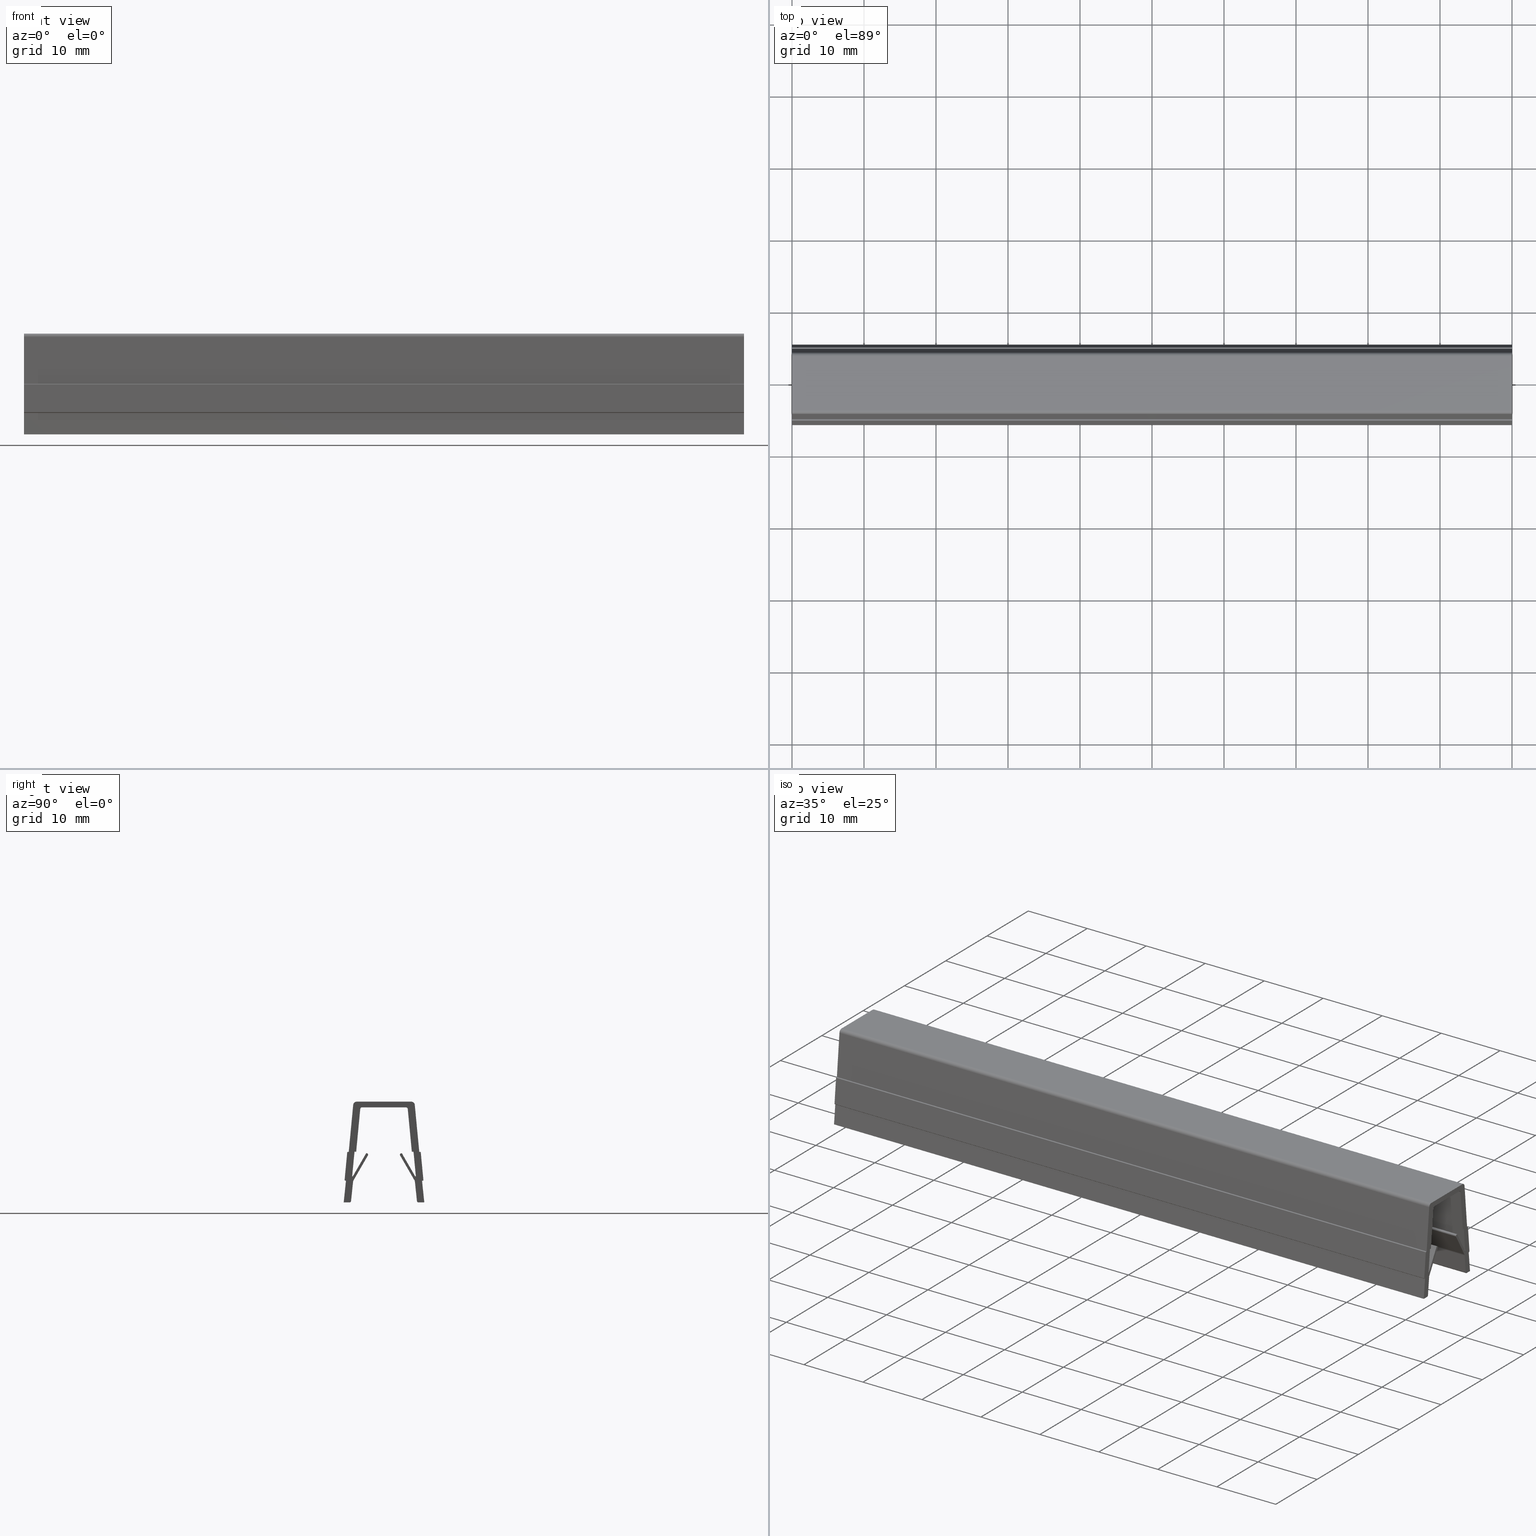
[diagram: canonical four-view strip — front | top / right | iso, engineering-drawing reading convention]
A machine part, canonical four-view strip (front | top / right | iso — engineering-drawing reading convention). The complete STEP part file that produces these views, byte-faithful:
ISO-10303-21;
HEADER;
/****************************************************************
 * Generated by software with PDE/Lib inside                    *
 * PDElib Version v4.4, created Mon 02/23/2004                  *
 * International Technegroup Inc. (www.iti-oh.com)              *
 ****************************************************************/
FILE_DESCRIPTION(('STEP AP203'),'2;1');
FILE_NAME('21.030.00.stp','2011-02-14T09:06:47',(''),(''),'2009.3.110','THINKDESIGN','');
FILE_SCHEMA(('CONFIG_CONTROL_DESIGN'));
ENDSEC;
DATA;
#2=CARTESIAN_POINT('',(-1.000000E-008,4.370371275963079,-9.549866051156375));
#3=DIRECTION('',(1.0,0.0,0.0));
#4=DIRECTION('',(0.0,-0.998873233346943,-0.047458020428840));
#5=AXIS2_PLACEMENT_3D('',#2,#3,#4);
#6=CYLINDRICAL_SURFACE('',#5,0.050000000000001);
#7=CARTESIAN_POINT('',(0.0,4.420371275963079,-9.549866051156375));
#8=VERTEX_POINT('',#7);
#9=CARTESIAN_POINT('',(0.0,4.420146049592768,-9.545125596524974));
#10=VERTEX_POINT('',#9);
#11=CARTESIAN_POINT('',(0.0,4.370371275963075,-9.549866051156375));
#12=DIRECTION('',(1.0,0.0,0.0));
#13=DIRECTION('',(0.0,-1.0,6.123234E-017));
#14=AXIS2_PLACEMENT_3D('',#11,#12,#13);
#15=CIRCLE('',#14,0.050000000000001);
#16=EDGE_CURVE('',#8,#10,#15,.T.);
#17=ORIENTED_EDGE('',*,*,#16,.F.);
#18=CARTESIAN_POINT('',(100.0,4.420371275963079,-9.549866051156375));
#19=VERTEX_POINT('',#18);
#20=CARTESIAN_POINT('',(0.0,4.420371275963079,-9.549866051156375));
#21=DIRECTION('',(1.0,0.0,0.0));
#22=VECTOR('',#21,100.0);
#23=LINE('',#20,#22);
#24=EDGE_CURVE('',#8,#19,#23,.T.);
#25=ORIENTED_EDGE('',*,*,#24,.T.);
#26=CARTESIAN_POINT('',(100.0,4.420146049592768,-9.545125596524974));
#27=VERTEX_POINT('',#26);
#28=CARTESIAN_POINT('',(100.0,4.370371275963075,-9.549866051156375));
#29=DIRECTION('',(-1.0,0.0,0.0));
#30=DIRECTION('',(0.0,-1.0,6.123234E-017));
#31=AXIS2_PLACEMENT_3D('',#28,#29,#30);
#32=CIRCLE('',#31,0.050000000000001);
#33=EDGE_CURVE('',#27,#19,#32,.T.);
#34=ORIENTED_EDGE('',*,*,#33,.F.);
#35=CARTESIAN_POINT('',(0.0,4.420146049592768,-9.545125596524974));
#36=DIRECTION('',(1.0,0.0,0.0));
#37=VECTOR('',#36,100.0);
#38=LINE('',#35,#37);
#39=EDGE_CURVE('',#10,#27,#38,.T.);
#40=ORIENTED_EDGE('',*,*,#39,.F.);
#41=EDGE_LOOP('',(#17,#25,#34,#40));
#42=FACE_OUTER_BOUND('',#41,.T.);
#43=ADVANCED_FACE('',(#42),#6,.F.);
#44=CARTESIAN_POINT('',(100.000000009999990,-5.371334850749854,-10.087359164160796));
#45=DIRECTION('',(-1.0,0.0,0.0));
#46=DIRECTION('',(0.0,0.739865975598302,0.672754292555590));
#47=AXIS2_PLACEMENT_3D('',#44,#45,#46);
#48=CYLINDRICAL_SURFACE('',#47,0.099999999999999);
#49=CARTESIAN_POINT('',(100.0,-5.471334850749855,-10.087359164160796));
#50=VERTEX_POINT('',#49);
#51=CARTESIAN_POINT('',(100.0,-5.380815183119461,-10.186908766360714));
#52=VERTEX_POINT('',#51);
#53=CARTESIAN_POINT('',(100.0,-5.371334850749856,-10.087359164160796));
#54=DIRECTION('',(1.0,0.0,0.0));
#55=DIRECTION('',(0.0,-1.0,6.123234E-017));
#56=AXIS2_PLACEMENT_3D('',#53,#54,#55);
#57=CIRCLE('',#56,0.099999999999999);
#58=EDGE_CURVE('',#50,#52,#57,.T.);
#59=ORIENTED_EDGE('',*,*,#58,.F.);
#60=CARTESIAN_POINT('',(0.0,-5.471334850749855,-10.087359164160796));
#61=VERTEX_POINT('',#60);
#62=CARTESIAN_POINT('',(100.0,-5.471334850749855,-10.087359164160796));
#63=DIRECTION('',(-1.0,0.0,0.0));
#64=VECTOR('',#63,100.0);
#65=LINE('',#62,#64);
#66=EDGE_CURVE('',#50,#61,#65,.T.);
#67=ORIENTED_EDGE('',*,*,#66,.T.);
#68=CARTESIAN_POINT('',(0.0,-5.380815183119461,-10.186908766360714));
#69=VERTEX_POINT('',#68);
#70=CARTESIAN_POINT('',(0.0,-5.371334850749856,-10.087359164160796));
#71=DIRECTION('',(-1.0,0.0,0.0));
#72=DIRECTION('',(0.0,-1.0,6.123234E-017));
#73=AXIS2_PLACEMENT_3D('',#70,#71,#72);
#74=CIRCLE('',#73,0.099999999999999);
#75=EDGE_CURVE('',#69,#61,#74,.T.);
#76=ORIENTED_EDGE('',*,*,#75,.F.);
#77=CARTESIAN_POINT('',(100.0,-5.380815183119461,-10.186908766360714));
#78=DIRECTION('',(-1.0,0.0,0.0));
#79=VECTOR('',#78,100.0);
#80=LINE('',#77,#79);
#81=EDGE_CURVE('',#52,#69,#80,.T.);
#82=ORIENTED_EDGE('',*,*,#81,.F.);
#83=EDGE_LOOP('',(#59,#67,#76,#82));
#84=FACE_OUTER_BOUND('',#83,.T.);
#85=ADVANCED_FACE('',(#84),#48,.T.);
#86=CARTESIAN_POINT('',(100.000000009999990,2.410368937345053,-6.576129799545897));
#87=DIRECTION('',(-1.0,0.0,0.0));
#88=DIRECTION('',(0.0,0.965925826289068,0.258819045102523));
#89=AXIS2_PLACEMENT_3D('',#86,#87,#88);
#90=CYLINDRICAL_SURFACE('',#89,0.199999999999999);
#91=CARTESIAN_POINT('',(100.0,2.210368937345054,-6.576129799545897));
#92=VERTEX_POINT('',#91);
#93=CARTESIAN_POINT('',(100.0,2.237163856588163,-6.676129799545898));
#94=VERTEX_POINT('',#93);
#95=CARTESIAN_POINT('',(100.0,2.410368937345050,-6.576129799545897));
#96=DIRECTION('',(1.0,0.0,0.0));
#97=DIRECTION('',(0.0,-1.0,6.123234E-017));
#98=AXIS2_PLACEMENT_3D('',#95,#96,#97);
#99=CIRCLE('',#98,0.199999999999999);
#100=EDGE_CURVE('',#92,#94,#99,.T.);
#101=ORIENTED_EDGE('',*,*,#100,.F.);
#102=CARTESIAN_POINT('',(0.0,2.210368937345054,-6.576129799545897));
#103=VERTEX_POINT('',#102);
#104=CARTESIAN_POINT('',(100.0,2.210368937345054,-6.576129799545897));
#105=DIRECTION('',(-1.0,0.0,0.0));
#106=VECTOR('',#105,100.0);
#107=LINE('',#104,#106);
#108=EDGE_CURVE('',#92,#103,#107,.T.);
#109=ORIENTED_EDGE('',*,*,#108,.T.);
#110=CARTESIAN_POINT('',(0.0,2.237163856588163,-6.676129799545898));
#111=VERTEX_POINT('',#110);
#112=CARTESIAN_POINT('',(0.0,2.410368937345050,-6.576129799545897));
#113=DIRECTION('',(1.0,0.0,0.0));
#114=DIRECTION('',(0.0,6.123234E-017,1.0));
#115=AXIS2_PLACEMENT_3D('',#112,#113,#114);
#116=CIRCLE('',#115,0.200000000000000);
#117=EDGE_CURVE('',#103,#111,#116,.T.);
#118=ORIENTED_EDGE('',*,*,#117,.T.);
#119=CARTESIAN_POINT('',(100.0,2.237163856588163,-6.676129799545898));
#120=DIRECTION('',(-1.0,0.0,0.0));
#121=VECTOR('',#120,100.0);
#122=LINE('',#119,#121);
#123=EDGE_CURVE('',#94,#111,#122,.T.);
#124=ORIENTED_EDGE('',*,*,#123,.F.);
#125=EDGE_LOOP('',(#101,#109,#118,#124));
#126=FACE_OUTER_BOUND('',#125,.T.);
#127=ADVANCED_FACE('',(#126),#90,.T.);
#128=CARTESIAN_POINT('',(105.0,5.638646426968686,-13.200000000000003));
#129=DIRECTION('',(0.0,0.0,-1.0));
#130=DIRECTION('',(0.0,-1.0,0.0));
#131=AXIS2_PLACEMENT_3D('',#128,#129,#130);
#132=PLANE('',#131);
#133=CARTESIAN_POINT('',(100.0,5.597608298343600,-13.200000000000003));
#134=VERTEX_POINT('',#133);
#135=CARTESIAN_POINT('',(100.0,4.776845725841904,-13.200000000000003));
#136=VERTEX_POINT('',#135);
#137=CARTESIAN_POINT('',(100.0,5.597608298343600,-13.200000000000003));
#138=DIRECTION('',(0.0,-1.0,0.0));
#139=VECTOR('',#138,0.820762572501696);
#140=LINE('',#137,#139);
#141=EDGE_CURVE('',#134,#136,#140,.T.);
#142=ORIENTED_EDGE('',*,*,#141,.T.);
#143=CARTESIAN_POINT('',(0.0,4.776845725841904,-13.200000000000003));
#144=VERTEX_POINT('',#143);
#145=CARTESIAN_POINT('',(100.0,4.776845725841904,-13.200000000000003));
#146=DIRECTION('',(-1.0,0.0,0.0));
#147=VECTOR('',#146,100.0);
#148=LINE('',#145,#147);
#149=EDGE_CURVE('',#136,#144,#148,.T.);
#150=ORIENTED_EDGE('',*,*,#149,.T.);
#151=CARTESIAN_POINT('',(0.0,5.597608298343600,-13.200000000000003));
#152=VERTEX_POINT('',#151);
#153=CARTESIAN_POINT('',(0.0,5.597608298343600,-13.200000000000003));
#154=DIRECTION('',(0.0,-1.0,0.0));
#155=VECTOR('',#154,0.820762572501696);
#156=LINE('',#153,#155);
#157=EDGE_CURVE('',#152,#144,#156,.T.);
#158=ORIENTED_EDGE('',*,*,#157,.F.);
#159=CARTESIAN_POINT('',(100.0,5.597608298343600,-13.200000000000003));
#160=DIRECTION('',(-1.0,0.0,0.0));
#161=VECTOR('',#160,100.0);
#162=LINE('',#159,#161);
#163=EDGE_CURVE('',#134,#152,#162,.T.);
#164=ORIENTED_EDGE('',*,*,#163,.F.);
#165=EDGE_LOOP('',(#142,#150,#158,#164));
#166=FACE_OUTER_BOUND('',#165,.T.);
#167=ADVANCED_FACE('',(#166),#132,.T.);
#168=CARTESIAN_POINT('',(105.0,-4.735807597216827,-13.200000000000001));
#169=DIRECTION('',(0.0,0.0,-1.0));
#170=DIRECTION('',(0.0,-1.0,0.0));
#171=AXIS2_PLACEMENT_3D('',#168,#169,#170);
#172=PLANE('',#171);
#173=CARTESIAN_POINT('',(0.0,-4.776845725841911,-13.200000000000001));
#174=VERTEX_POINT('',#173);
#175=CARTESIAN_POINT('',(0.0,-5.597608298343594,-13.200000000000001));
#176=VERTEX_POINT('',#175);
#177=CARTESIAN_POINT('',(0.0,-4.776845725841911,-13.200000000000001));
#178=DIRECTION('',(0.0,-1.0,0.0));
#179=VECTOR('',#178,0.820762572501684);
#180=LINE('',#177,#179);
#181=EDGE_CURVE('',#174,#176,#180,.T.);
#182=ORIENTED_EDGE('',*,*,#181,.F.);
#183=CARTESIAN_POINT('',(100.0,-4.776845725841911,-13.200000000000001));
#184=VERTEX_POINT('',#183);
#185=CARTESIAN_POINT('',(0.0,-4.776845725841911,-13.200000000000001));
#186=DIRECTION('',(1.0,0.0,0.0));
#187=VECTOR('',#186,100.0);
#188=LINE('',#185,#187);
#189=EDGE_CURVE('',#174,#184,#188,.T.);
#190=ORIENTED_EDGE('',*,*,#189,.T.);
#191=CARTESIAN_POINT('',(100.0,-5.597608298343600,-13.200000000000001));
#192=VERTEX_POINT('',#191);
#193=CARTESIAN_POINT('',(100.0,-4.776845725841911,-13.200000000000001));
#194=DIRECTION('',(0.0,-1.0,0.0));
#195=VECTOR('',#194,0.820762572501689);
#196=LINE('',#193,#195);
#197=EDGE_CURVE('',#184,#192,#196,.T.);
#198=ORIENTED_EDGE('',*,*,#197,.T.);
#199=CARTESIAN_POINT('',(100.0,-5.597608298343600,-13.200000000000001));
#200=DIRECTION('',(-1.0,0.0,0.0));
#201=VECTOR('',#200,100.0);
#202=LINE('',#199,#201);
#203=EDGE_CURVE('',#192,#176,#202,.T.);
#204=ORIENTED_EDGE('',*,*,#203,.T.);
#205=EDGE_LOOP('',(#182,#190,#198,#204));
#206=FACE_OUTER_BOUND('',#205,.T.);
#207=ADVANCED_FACE('',(#206),#172,.T.);
#208=CARTESIAN_POINT('',(105.0,4.157303879116741,0.799999999999994));
#209=DIRECTION('',(0.0,0.0,1.0));
#210=DIRECTION('',(-1.0,0.0,0.0));
#211=AXIS2_PLACEMENT_3D('',#208,#209,#210);
#212=PLANE('',#211);
#213=CARTESIAN_POINT('',(100.0,-3.779367162833399,0.799999999999996));
#214=VERTEX_POINT('',#213);
#215=CARTESIAN_POINT('',(100.0,3.779367162833401,0.799999999999994));
#216=VERTEX_POINT('',#215);
#217=CARTESIAN_POINT('',(100.0,-3.779367162833399,0.799999999999996));
#218=DIRECTION('',(0.0,1.0,0.0));
#219=VECTOR('',#218,7.558734325666800);
#220=LINE('',#217,#219);
#221=EDGE_CURVE('',#214,#216,#220,.T.);
#222=ORIENTED_EDGE('',*,*,#221,.T.);
#223=CARTESIAN_POINT('',(0.0,3.779367162833401,0.799999999999994));
#224=VERTEX_POINT('',#223);
#225=CARTESIAN_POINT('',(100.0,3.779367162833401,0.799999999999994));
#226=DIRECTION('',(-1.0,0.0,0.0));
#227=VECTOR('',#226,100.0);
#228=LINE('',#225,#227);
#229=EDGE_CURVE('',#216,#224,#228,.T.);
#230=ORIENTED_EDGE('',*,*,#229,.T.);
#231=CARTESIAN_POINT('',(0.0,-3.779367162833399,0.799999999999996));
#232=VERTEX_POINT('',#231);
#233=CARTESIAN_POINT('',(0.0,-3.779367162833399,0.799999999999996));
#234=DIRECTION('',(0.0,1.0,0.0));
#235=VECTOR('',#234,7.558734325666800);
#236=LINE('',#233,#235);
#237=EDGE_CURVE('',#232,#224,#236,.T.);
#238=ORIENTED_EDGE('',*,*,#237,.F.);
#239=CARTESIAN_POINT('',(0.0,-3.779367162833399,0.799999999999996));
#240=DIRECTION('',(1.0,0.0,0.0));
#241=VECTOR('',#240,100.0);
#242=LINE('',#239,#241);
#243=EDGE_CURVE('',#232,#214,#242,.T.);
#244=ORIENTED_EDGE('',*,*,#243,.T.);
#245=EDGE_LOOP('',(#222,#230,#238,#244));
#246=FACE_OUTER_BOUND('',#245,.T.);
#247=ADVANCED_FACE('',(#246),#212,.T.);
#248=CARTESIAN_POINT('',(100.0,6.157369128177960,-13.900000000000002));
#249=DIRECTION('',(-1.0,0.0,0.0));
#250=DIRECTION('',(0.0,-1.0,0.0));
#251=AXIS2_PLACEMENT_3D('',#248,#249,#250);
#252=PLANE('',#251);
#253=CARTESIAN_POINT('',(100.0,4.900161529428099,-6.194585071812065));
#254=VERTEX_POINT('',#253);
#255=CARTESIAN_POINT('',(100.0,4.277114899130369,0.347404546313992));
#256=VERTEX_POINT('',#255);
#257=CARTESIAN_POINT('',(100.0,4.900161529428099,-6.194585071812063));
#258=DIRECTION('',(0.0,-0.094809092627996,0.995495472593952));
#259=VECTOR('',#258,6.571591532284585);
#260=LINE('',#257,#259);
#261=EDGE_CURVE('',#254,#256,#260,.T.);
#262=ORIENTED_EDGE('',*,*,#261,.T.);
#263=CARTESIAN_POINT('',(100.0,3.779367162833401,0.299999999999994));
#264=DIRECTION('',(1.0,0.0,0.0));
#265=DIRECTION('',(0.0,-1.0,6.123234E-017));
#266=AXIS2_PLACEMENT_3D('',#263,#264,#265);
#267=CIRCLE('',#266,0.500000000000001);
#268=EDGE_CURVE('',#256,#216,#267,.T.);
#269=ORIENTED_EDGE('',*,*,#268,.T.);
#270=ORIENTED_EDGE('',*,*,#221,.F.);
#271=CARTESIAN_POINT('',(100.0,-4.277114899130373,0.347404546313994));
#272=VERTEX_POINT('',#271);
#273=CARTESIAN_POINT('',(100.0,-3.779367162833399,0.299999999999996));
#274=DIRECTION('',(1.0,0.0,0.0));
#275=DIRECTION('',(0.0,-1.0,6.123234E-017));
#276=AXIS2_PLACEMENT_3D('',#273,#274,#275);
#277=CIRCLE('',#276,0.500000000000001);
#278=EDGE_CURVE('',#214,#272,#277,.T.);
#279=ORIENTED_EDGE('',*,*,#278,.T.);
#280=CARTESIAN_POINT('',(100.0,-4.900161529428102,-6.194585071812065));
#281=VERTEX_POINT('',#280);
#282=CARTESIAN_POINT('',(100.0,-4.900161529428100,-6.194585071812067));
#283=DIRECTION('',(0.0,0.094809092627996,0.995495472593952));
#284=VECTOR('',#283,6.571591532284588);
#285=LINE('',#282,#284);
#286=EDGE_CURVE('',#281,#272,#285,.T.);
#287=ORIENTED_EDGE('',*,*,#286,.F.);
#288=CARTESIAN_POINT('',(100.0,-4.999692324902947,-6.185106530449162));
#289=VERTEX_POINT('',#288);
#290=CARTESIAN_POINT('',(100.0,-4.999692324902947,-6.185106530449160));
#291=DIRECTION('',(0.0,0.995496021999178,-0.094803323696021));
#292=VECTOR('',#291,0.099981108186615);
#293=LINE('',#290,#292);
#294=EDGE_CURVE('',#289,#281,#293,.T.);
#295=ORIENTED_EDGE('',*,*,#294,.F.);
#296=CARTESIAN_POINT('',(100.0,-5.108722204531938,-6.275175223386277));
#297=VERTEX_POINT('',#296);
#298=CARTESIAN_POINT('',(100.0,-5.009172657272545,-6.284656132649080));
#299=DIRECTION('',(1.0,0.0,0.0));
#300=DIRECTION('',(0.0,-1.0,6.123234E-017));
#301=AXIS2_PLACEMENT_3D('',#298,#299,#300);
#302=CIRCLE('',#301,0.099999999999999);
#303=EDGE_CURVE('',#289,#297,#302,.T.);
#304=ORIENTED_EDGE('',*,*,#303,.T.);
#305=CARTESIAN_POINT('',(100.0,-5.470884398009254,-10.077878254897996));
#306=VERTEX_POINT('',#305);
#307=CARTESIAN_POINT('',(100.0,-5.470884398009249,-10.077878254897996));
#308=DIRECTION('',(0.0,0.094809092627996,0.995495472593952));
#309=VECTOR('',#308,3.819909920436963);
#310=LINE('',#307,#309);
#311=EDGE_CURVE('',#306,#297,#310,.T.);
#312=ORIENTED_EDGE('',*,*,#311,.F.);
#313=CARTESIAN_POINT('',(100.0,-5.371334850749856,-10.087359164160796));
#314=DIRECTION('',(1.0,0.0,0.0));
#315=DIRECTION('',(0.0,-1.0,6.123234E-017));
#316=AXIS2_PLACEMENT_3D('',#313,#314,#315);
#317=CIRCLE('',#316,0.099999999999999);
#318=EDGE_CURVE('',#306,#50,#317,.T.);
#319=ORIENTED_EDGE('',*,*,#318,.T.);
#320=ORIENTED_EDGE('',*,*,#58,.T.);
#321=CARTESIAN_POINT('',(100.0,-5.282863777858967,-10.196236898843598));
#322=VERTEX_POINT('',#321);
#323=CARTESIAN_POINT('',(100.0,-5.282863777858967,-10.196236898843598));
#324=DIRECTION('',(0.0,-0.995496021999177,0.094803323696031));
#325=VECTOR('',#324,0.098394572249305);
#326=LINE('',#323,#325);
#327=EDGE_CURVE('',#322,#52,#326,.T.);
#328=ORIENTED_EDGE('',*,*,#327,.F.);
#329=CARTESIAN_POINT('',(100.0,-5.597608298343598,-13.200000000000003));
#330=DIRECTION('',(0.0,0.104212859363190,0.994555016046547));
#331=VECTOR('',#330,3.020208085719235);
#332=LINE('',#329,#331);
#333=EDGE_CURVE('',#192,#322,#332,.T.);
#334=ORIENTED_EDGE('',*,*,#333,.F.);
#335=ORIENTED_EDGE('',*,*,#197,.F.);
#336=CARTESIAN_POINT('',(100.0,-4.577934722632598,-13.020842571872638));
#337=VERTEX_POINT('',#336);
#338=CARTESIAN_POINT('',(100.0,-4.776845725841911,-13.000000000000002));
#339=DIRECTION('',(1.0,0.0,0.0));
#340=DIRECTION('',(0.0,-1.0,6.123234E-017));
#341=AXIS2_PLACEMENT_3D('',#338,#339,#340);
#342=CIRCLE('',#341,0.200000000000000);
#343=EDGE_CURVE('',#184,#337,#342,.T.);
#344=ORIENTED_EDGE('',*,*,#343,.T.);
#345=CARTESIAN_POINT('',(100.0,-4.295810869451124,-10.328394681635297));
#346=VERTEX_POINT('',#345);
#347=CARTESIAN_POINT('',(100.0,-4.577934722632600,-13.020842571872638));
#348=DIRECTION('',(0.0,0.104212859363188,0.994555016046547));
#349=VECTOR('',#348,2.707188488114096);
#350=LINE('',#347,#349);
#351=EDGE_CURVE('',#337,#346,#350,.T.);
#352=ORIENTED_EDGE('',*,*,#351,.T.);
#353=CARTESIAN_POINT('',(100.0,-4.231546063320069,-10.130501111316889));
#354=VERTEX_POINT('',#353);
#355=CARTESIAN_POINT('',(100.0,-3.798533361427847,-10.380501111316892));
#356=DIRECTION('',(-1.0,0.0,0.0));
#357=DIRECTION('',(0.0,-1.0,6.123234E-017));
#358=AXIS2_PLACEMENT_3D('',#355,#356,#357);
#359=CIRCLE('',#358,0.500000000000001);
#360=EDGE_CURVE('',#346,#354,#359,.T.);
#361=ORIENTED_EDGE('',*,*,#360,.T.);
#362=CARTESIAN_POINT('',(100.0,-2.237163856588166,-6.676129799545898));
#363=VERTEX_POINT('',#362);
#364=CARTESIAN_POINT('',(100.0,-4.231546063320069,-10.130501111316889));
#365=DIRECTION('',(0.0,0.500000000000000,0.866025403784438));
#366=VECTOR('',#365,3.988764413463806);
#367=LINE('',#364,#366);
#368=EDGE_CURVE('',#354,#363,#367,.T.);
#369=ORIENTED_EDGE('',*,*,#368,.T.);
#370=CARTESIAN_POINT('',(100.0,-2.391408272605846,-6.377030595146062));
#371=VERTEX_POINT('',#370);
#372=CARTESIAN_POINT('',(100.0,-2.410368937345053,-6.576129799545897));
#373=DIRECTION('',(1.0,0.0,0.0));
#374=DIRECTION('',(0.0,-1.0,6.123234E-017));
#375=AXIS2_PLACEMENT_3D('',#372,#373,#374);
#376=CIRCLE('',#375,0.200000000000000);
#377=EDGE_CURVE('',#363,#371,#376,.T.);
#378=ORIENTED_EDGE('',*,*,#377,.T.);
#379=CARTESIAN_POINT('',(100.0,-2.476140088873599,-6.368961393835891));
#380=VERTEX_POINT('',#379);
#381=CARTESIAN_POINT('',(100.0,-2.391408272605846,-6.377030595146060));
#382=DIRECTION('',(0.0,-0.995496021999177,0.094803323696027));
#383=VECTOR('',#382,0.085115173135090);
#384=LINE('',#381,#383);
#385=EDGE_CURVE('',#371,#380,#384,.T.);
#386=ORIENTED_EDGE('',*,*,#385,.T.);
#387=CARTESIAN_POINT('',(100.0,-4.327070005773850,-9.574866051156370));
#388=VERTEX_POINT('',#387);
#389=CARTESIAN_POINT('',(100.0,-2.476140088873597,-6.368961393835892));
#390=DIRECTION('',(0.0,-0.500000000000000,-0.866025403784439));
#391=VECTOR('',#390,3.701859833800506);
#392=LINE('',#389,#391);
#393=EDGE_CURVE('',#380,#388,#392,.T.);
#394=ORIENTED_EDGE('',*,*,#393,.T.);
#395=CARTESIAN_POINT('',(100.0,-4.420146049592773,-9.545125596524969));
#396=VERTEX_POINT('',#395);
#397=CARTESIAN_POINT('',(100.0,-4.370371275963073,-9.549866051156370));
#398=DIRECTION('',(-1.0,0.0,0.0));
#399=DIRECTION('',(0.0,-1.0,6.123234E-017));
#400=AXIS2_PLACEMENT_3D('',#397,#398,#399);
#401=CIRCLE('',#400,0.050000000000000);
#402=EDGE_CURVE('',#388,#396,#401,.T.);
#403=ORIENTED_EDGE('',*,*,#402,.T.);
#404=CARTESIAN_POINT('',(100.0,-4.096903718361617,-6.151081118597838));
#405=VERTEX_POINT('',#404);
#406=CARTESIAN_POINT('',(100.0,-4.420146049592770,-9.545125596524970));
#407=DIRECTION('',(0.0,0.094809092627996,0.995495472593952));
#408=VECTOR('',#407,3.409402223681947);
#409=LINE('',#406,#408);
#410=EDGE_CURVE('',#396,#405,#409,.T.);
#411=ORIENTED_EDGE('',*,*,#410,.T.);
#412=CARTESIAN_POINT('',(100.0,-3.866478573623335,-6.173025023045049));
#413=VERTEX_POINT('',#412);
#414=CARTESIAN_POINT('',(100.0,-4.096903718361617,-6.151081118597840));
#415=DIRECTION('',(0.0,0.995496021999177,-0.094803323696032));
#416=VECTOR('',#415,0.231467670032008);
#417=LINE('',#414,#416);
#418=EDGE_CURVE('',#405,#413,#417,.T.);
#419=ORIENTED_EDGE('',*,*,#418,.T.);
#420=CARTESIAN_POINT('',(100.0,-3.300123593032668,-0.226297726842999));
#421=VERTEX_POINT('',#420);
#422=CARTESIAN_POINT('',(100.0,-3.866478573623340,-6.173025023045049));
#423=DIRECTION('',(0.0,0.094809092627995,0.995495472593952));
#424=VECTOR('',#423,5.973635701935161);
#425=LINE('',#422,#424);
#426=EDGE_CURVE('',#413,#421,#425,.T.);
#427=ORIENTED_EDGE('',*,*,#426,.T.);
#428=CARTESIAN_POINT('',(100.0,-3.051249724884181,1.868352E-016));
#429=VERTEX_POINT('',#428);
#430=CARTESIAN_POINT('',(100.0,-3.051249724884181,-0.250000000000003));
#431=DIRECTION('',(-1.0,0.0,0.0));
#432=DIRECTION('',(0.0,-1.0,6.123234E-017));
#433=AXIS2_PLACEMENT_3D('',#430,#431,#432);
#434=CIRCLE('',#433,0.250000000000000);
#435=EDGE_CURVE('',#421,#429,#434,.T.);
#436=ORIENTED_EDGE('',*,*,#435,.T.);
#437=CARTESIAN_POINT('',(100.0,3.051249724884181,-1.589522E-015));
#438=VERTEX_POINT('',#437);
#439=CARTESIAN_POINT('',(100.0,-3.051249724884181,1.868352E-016));
#440=DIRECTION('',(0.0,1.0,0.0));
#441=VECTOR('',#440,6.102499449768363);
#442=LINE('',#439,#441);
#443=EDGE_CURVE('',#429,#438,#442,.T.);
#444=ORIENTED_EDGE('',*,*,#443,.T.);
#445=CARTESIAN_POINT('',(100.0,3.300123593032671,-0.226297726843004));
#446=VERTEX_POINT('',#445);
#447=CARTESIAN_POINT('',(100.0,3.051249724884181,-0.250000000000005));
#448=DIRECTION('',(-1.0,0.0,0.0));
#449=DIRECTION('',(0.0,-1.0,6.123234E-017));
#450=AXIS2_PLACEMENT_3D('',#447,#448,#449);
#451=CIRCLE('',#450,0.250000000000000);
#452=EDGE_CURVE('',#438,#446,#451,.T.);
#453=ORIENTED_EDGE('',*,*,#452,.T.);
#454=CARTESIAN_POINT('',(100.0,3.866478573623335,-6.173025023045047));
#455=VERTEX_POINT('',#454);
#456=CARTESIAN_POINT('',(100.0,3.300123593032671,-0.226297726843002));
#457=DIRECTION('',(0.0,0.094809092627995,-0.995495472593952));
#458=VECTOR('',#457,5.973635701935158);
#459=LINE('',#456,#458);
#460=EDGE_CURVE('',#446,#455,#459,.T.);
#461=ORIENTED_EDGE('',*,*,#460,.T.);
#462=CARTESIAN_POINT('',(100.0,4.096903718361611,-6.151081118597838));
#463=VERTEX_POINT('',#462);
#464=CARTESIAN_POINT('',(100.0,3.866478573623335,-6.173025023045046));
#465=DIRECTION('',(0.0,0.995496021999177,0.094803323696026));
#466=VECTOR('',#465,0.231467670032003);
#467=LINE('',#464,#466);
#468=EDGE_CURVE('',#455,#463,#467,.T.);
#469=ORIENTED_EDGE('',*,*,#468,.T.);
#470=CARTESIAN_POINT('',(100.0,4.096903718361615,-6.151081118597838));
#471=DIRECTION('',(0.0,0.094809092627996,-0.995495472593952));
#472=VECTOR('',#471,3.409402223681950);
#473=LINE('',#470,#472);
#474=EDGE_CURVE('',#463,#27,#473,.T.);
#475=ORIENTED_EDGE('',*,*,#474,.T.);
#476=ORIENTED_EDGE('',*,*,#33,.T.);
#477=CARTESIAN_POINT('',(100.0,4.327070005773850,-9.574866051156375));
#478=VERTEX_POINT('',#477);
#479=CARTESIAN_POINT('',(100.0,4.370371275963075,-9.549866051156375));
#480=DIRECTION('',(-1.0,0.0,0.0));
#481=DIRECTION('',(0.0,-1.0,6.123234E-017));
#482=AXIS2_PLACEMENT_3D('',#479,#480,#481);
#483=CIRCLE('',#482,0.050000000000001);
#484=EDGE_CURVE('',#19,#478,#483,.T.);
#485=ORIENTED_EDGE('',*,*,#484,.T.);
#486=CARTESIAN_POINT('',(100.0,2.476140088873594,-6.368961393835891));
#487=VERTEX_POINT('',#486);
#488=CARTESIAN_POINT('',(100.0,4.327070005773853,-9.574866051156374));
#489=DIRECTION('',(0.0,-0.500000000000001,0.866025403784438));
#490=VECTOR('',#489,3.701859833800514);
#491=LINE('',#488,#490);
#492=EDGE_CURVE('',#478,#487,#491,.T.);
#493=ORIENTED_EDGE('',*,*,#492,.T.);
#494=CARTESIAN_POINT('',(100.0,2.391408272605835,-6.377030595146062));
#495=VERTEX_POINT('',#494);
#496=CARTESIAN_POINT('',(100.0,2.476140088873594,-6.368961393835892));
#497=DIRECTION('',(0.0,-0.995496021999176,-0.094803323696041));
#498=VECTOR('',#497,0.085115173135096);
#499=LINE('',#496,#498);
#500=EDGE_CURVE('',#487,#495,#499,.T.);
#501=ORIENTED_EDGE('',*,*,#500,.T.);
#502=CARTESIAN_POINT('',(100.0,2.410368937345050,-6.576129799545897));
#503=DIRECTION('',(1.0,0.0,0.0));
#504=DIRECTION('',(0.0,-1.0,6.123234E-017));
#505=AXIS2_PLACEMENT_3D('',#502,#503,#504);
#506=CIRCLE('',#505,0.199999999999999);
#507=EDGE_CURVE('',#495,#92,#506,.T.);
#508=ORIENTED_EDGE('',*,*,#507,.T.);
#509=ORIENTED_EDGE('',*,*,#100,.T.);
#510=CARTESIAN_POINT('',(100.0,4.231546063320069,-10.130501111316891));
#511=VERTEX_POINT('',#510);
#512=CARTESIAN_POINT('',(100.0,2.237163856588163,-6.676129799545898));
#513=DIRECTION('',(0.0,0.500000000000000,-0.866025403784439));
#514=VECTOR('',#513,3.988764413463807);
#515=LINE('',#512,#514);
#516=EDGE_CURVE('',#94,#511,#515,.T.);
#517=ORIENTED_EDGE('',*,*,#516,.T.);
#518=CARTESIAN_POINT('',(100.0,4.295810869451119,-10.328394681635295));
#519=VERTEX_POINT('',#518);
#520=CARTESIAN_POINT('',(100.0,3.798533361427841,-10.380501111316889));
#521=DIRECTION('',(-1.0,0.0,0.0));
#522=DIRECTION('',(0.0,-1.0,6.123234E-017));
#523=AXIS2_PLACEMENT_3D('',#520,#521,#522);
#524=CIRCLE('',#523,0.500000000000001);
#525=EDGE_CURVE('',#511,#519,#524,.T.);
#526=ORIENTED_EDGE('',*,*,#525,.T.);
#527=CARTESIAN_POINT('',(100.0,4.577934722632600,-13.020842571872640));
#528=VERTEX_POINT('',#527);
#529=CARTESIAN_POINT('',(100.0,4.295810869451122,-10.328394681635295));
#530=DIRECTION('',(0.0,0.104212859363187,-0.994555016046548));
#531=VECTOR('',#530,2.707188488114099);
#532=LINE('',#529,#531);
#533=EDGE_CURVE('',#519,#528,#532,.T.);
#534=ORIENTED_EDGE('',*,*,#533,.T.);
#535=CARTESIAN_POINT('',(100.0,4.776845725841904,-13.000000000000002));
#536=DIRECTION('',(1.0,0.0,0.0));
#537=DIRECTION('',(0.0,-1.0,6.123234E-017));
#538=AXIS2_PLACEMENT_3D('',#535,#536,#537);
#539=CIRCLE('',#538,0.199999999999999);
#540=EDGE_CURVE('',#528,#136,#539,.T.);
#541=ORIENTED_EDGE('',*,*,#540,.T.);
#542=ORIENTED_EDGE('',*,*,#141,.F.);
#543=CARTESIAN_POINT('',(100.0,5.282863777858969,-10.196236898843598));
#544=VERTEX_POINT('',#543);
#545=CARTESIAN_POINT('',(100.0,5.597608298343593,-13.200000000000003));
#546=DIRECTION('',(0.0,-0.104212859363191,0.994555016046547));
#547=VECTOR('',#546,3.020208085719235);
#548=LINE('',#545,#547);
#549=EDGE_CURVE('',#134,#544,#548,.T.);
#550=ORIENTED_EDGE('',*,*,#549,.T.);
#551=CARTESIAN_POINT('',(100.0,5.380815183119450,-10.186908766360714));
#552=VERTEX_POINT('',#551);
#553=CARTESIAN_POINT('',(100.0,5.282863777858973,-10.196236898843598));
#554=DIRECTION('',(0.0,0.995496021999177,0.094803323696028));
#555=VECTOR('',#554,0.098394572249289);
#556=LINE('',#553,#555);
#557=EDGE_CURVE('',#544,#552,#556,.T.);
#558=ORIENTED_EDGE('',*,*,#557,.T.);
#559=CARTESIAN_POINT('',(100.0,5.470884398009238,-10.077878254897998));
#560=VERTEX_POINT('',#559);
#561=CARTESIAN_POINT('',(100.0,5.371334850749852,-10.087359164160798));
#562=DIRECTION('',(1.0,0.0,0.0));
#563=DIRECTION('',(0.0,-1.0,6.123234E-017));
#564=AXIS2_PLACEMENT_3D('',#561,#562,#563);
#565=CIRCLE('',#564,0.099999999999999);
#566=EDGE_CURVE('',#552,#560,#565,.T.);
#567=ORIENTED_EDGE('',*,*,#566,.T.);
#568=CARTESIAN_POINT('',(100.0,5.108722204531942,-6.275175223386278));
#569=VERTEX_POINT('',#568);
#570=CARTESIAN_POINT('',(100.0,5.470884398009245,-10.077878254897996));
#571=DIRECTION('',(0.0,-0.094809092627996,0.995495472593952));
#572=VECTOR('',#571,3.819909920436960);
#573=LINE('',#570,#572);
#574=EDGE_CURVE('',#560,#569,#573,.T.);
#575=ORIENTED_EDGE('',*,*,#574,.T.);
#576=CARTESIAN_POINT('',(100.0,4.999692324902947,-6.185106530449162));
#577=VERTEX_POINT('',#576);
#578=CARTESIAN_POINT('',(100.0,5.009172657272552,-6.284656132649080));
#579=DIRECTION('',(1.0,0.0,0.0));
#580=DIRECTION('',(0.0,-1.0,6.123234E-017));
#581=AXIS2_PLACEMENT_3D('',#578,#579,#580);
#582=CIRCLE('',#581,0.099999999999999);
#583=EDGE_CURVE('',#569,#577,#582,.T.);
#584=ORIENTED_EDGE('',*,*,#583,.T.);
#585=CARTESIAN_POINT('',(100.0,4.999692324902947,-6.185106530449163));
#586=DIRECTION('',(0.0,-0.995496021999177,-0.094803323696027));
#587=VECTOR('',#586,0.099981108186619);
#588=LINE('',#585,#587);
#589=EDGE_CURVE('',#577,#254,#588,.T.);
#590=ORIENTED_EDGE('',*,*,#589,.T.);
#591=EDGE_LOOP('',(#262,#269,#270,#279,#287,#295,#304,#312,#319,#320,#328,#334,#335,#344,#352,#361,#369,#378,#386,#394,#403,#411,#419,#427,#436,#444,#453,#461,#469,#475,#476,#485,#493,#501,#508,#509,#517,#526,#534,#541,#542,#550,#558,#567,#575,#584,#590));
#592=FACE_OUTER_BOUND('',#591,.T.);
#593=ADVANCED_FACE('',(#592),#252,.F.);
#594=CARTESIAN_POINT('',(0.0,6.157369128177960,-13.900000000000002));
#595=DIRECTION('',(-1.0,0.0,0.0));
#596=DIRECTION('',(0.0,-1.0,0.0));
#597=AXIS2_PLACEMENT_3D('',#594,#595,#596);
#598=PLANE('',#597);
#599=ORIENTED_EDGE('',*,*,#237,.T.);
#600=CARTESIAN_POINT('',(0.0,4.277114899130369,0.347404546313992));
#601=VERTEX_POINT('',#600);
#602=CARTESIAN_POINT('',(0.0,3.779367162833401,0.299999999999994));
#603=DIRECTION('',(-1.0,0.0,0.0));
#604=DIRECTION('',(0.0,-1.0,6.123234E-017));
#605=AXIS2_PLACEMENT_3D('',#602,#603,#604);
#606=CIRCLE('',#605,0.500000000000001);
#607=EDGE_CURVE('',#224,#601,#606,.T.);
#608=ORIENTED_EDGE('',*,*,#607,.T.);
#609=CARTESIAN_POINT('',(0.0,4.900161529428099,-6.194585071812065));
#610=VERTEX_POINT('',#609);
#611=CARTESIAN_POINT('',(0.0,4.900161529428099,-6.194585071812065));
#612=DIRECTION('',(0.0,-0.094809092627996,0.995495472593952));
#613=VECTOR('',#612,6.571591532284587);
#614=LINE('',#611,#613);
#615=EDGE_CURVE('',#610,#601,#614,.T.);
#616=ORIENTED_EDGE('',*,*,#615,.F.);
#617=CARTESIAN_POINT('',(0.0,4.999692324902947,-6.185106530449162));
#618=VERTEX_POINT('',#617);
#619=CARTESIAN_POINT('',(0.0,4.999692324902947,-6.185106530449161));
#620=DIRECTION('',(0.0,-0.995496021999177,-0.094803323696027));
#621=VECTOR('',#620,0.099981108186619);
#622=LINE('',#619,#621);
#623=EDGE_CURVE('',#618,#610,#622,.T.);
#624=ORIENTED_EDGE('',*,*,#623,.F.);
#625=CARTESIAN_POINT('',(0.0,5.108722204531942,-6.275175223386279));
#626=VERTEX_POINT('',#625);
#627=CARTESIAN_POINT('',(0.0,5.009172657272552,-6.284656132649080));
#628=DIRECTION('',(-1.0,0.0,0.0));
#629=DIRECTION('',(0.0,-1.0,6.123234E-017));
#630=AXIS2_PLACEMENT_3D('',#627,#628,#629);
#631=CIRCLE('',#630,0.099999999999999);
#632=EDGE_CURVE('',#618,#626,#631,.T.);
#633=ORIENTED_EDGE('',*,*,#632,.T.);
#634=CARTESIAN_POINT('',(0.0,5.470884398009238,-10.077878254897998));
#635=VERTEX_POINT('',#634);
#636=CARTESIAN_POINT('',(0.0,5.470884398009241,-10.077878254897998));
#637=DIRECTION('',(0.0,-0.094809092627995,0.995495472593952));
#638=VECTOR('',#637,3.819909920436961);
#639=LINE('',#636,#638);
#640=EDGE_CURVE('',#635,#626,#639,.T.);
#641=ORIENTED_EDGE('',*,*,#640,.F.);
#642=CARTESIAN_POINT('',(0.0,5.380815183119450,-10.186908766360716));
#643=VERTEX_POINT('',#642);
#644=CARTESIAN_POINT('',(0.0,5.371334850749852,-10.087359164160798));
#645=DIRECTION('',(-1.0,0.0,0.0));
#646=DIRECTION('',(0.0,-1.0,6.123234E-017));
#647=AXIS2_PLACEMENT_3D('',#644,#645,#646);
#648=CIRCLE('',#647,0.099999999999999);
#649=EDGE_CURVE('',#635,#643,#648,.T.);
#650=ORIENTED_EDGE('',*,*,#649,.T.);
#651=CARTESIAN_POINT('',(0.0,5.282863777858969,-10.196236898843598));
#652=VERTEX_POINT('',#651);
#653=CARTESIAN_POINT('',(0.0,5.282863777858969,-10.196236898843598));
#654=DIRECTION('',(0.0,0.995496021999177,0.094803323696025));
#655=VECTOR('',#654,0.098394572249292);
#656=LINE('',#653,#655);
#657=EDGE_CURVE('',#652,#643,#656,.T.);
#658=ORIENTED_EDGE('',*,*,#657,.F.);
#659=CARTESIAN_POINT('',(0.0,5.597608298343600,-13.200000000000003));
#660=DIRECTION('',(0.0,-0.104212859363191,0.994555016046547));
#661=VECTOR('',#660,3.020208085719235);
#662=LINE('',#659,#661);
#663=EDGE_CURVE('',#152,#652,#662,.T.);
#664=ORIENTED_EDGE('',*,*,#663,.F.);
#665=ORIENTED_EDGE('',*,*,#157,.T.);
#666=CARTESIAN_POINT('',(0.0,4.577934722632600,-13.020842571872638));
#667=VERTEX_POINT('',#666);
#668=CARTESIAN_POINT('',(0.0,4.776845725841904,-13.000000000000002));
#669=DIRECTION('',(-1.0,0.0,0.0));
#670=DIRECTION('',(0.0,-1.0,6.123234E-017));
#671=AXIS2_PLACEMENT_3D('',#668,#669,#670);
#672=CIRCLE('',#671,0.199999999999999);
#673=EDGE_CURVE('',#144,#667,#672,.T.);
#674=ORIENTED_EDGE('',*,*,#673,.T.);
#675=CARTESIAN_POINT('',(0.0,4.295810869451119,-10.328394681635295));
#676=VERTEX_POINT('',#675);
#677=CARTESIAN_POINT('',(0.0,4.295810869451126,-10.328394681635293));
#678=DIRECTION('',(0.0,0.104212859363187,-0.994555016046548));
#679=VECTOR('',#678,2.707188488114097);
#680=LINE('',#677,#679);
#681=EDGE_CURVE('',#676,#667,#680,.T.);
#682=ORIENTED_EDGE('',*,*,#681,.F.);
#683=CARTESIAN_POINT('',(0.0,4.231546063320069,-10.130501111316889));
#684=VERTEX_POINT('',#683);
#685=CARTESIAN_POINT('',(0.0,3.798533361427841,-10.380501111316889));
#686=DIRECTION('',(1.0,0.0,0.0));
#687=DIRECTION('',(0.0,-1.0,6.123234E-017));
#688=AXIS2_PLACEMENT_3D('',#685,#686,#687);
#689=CIRCLE('',#688,0.500000000000001);
#690=EDGE_CURVE('',#676,#684,#689,.T.);
#691=ORIENTED_EDGE('',*,*,#690,.T.);
#692=CARTESIAN_POINT('',(0.0,2.237163856588166,-6.676129799545896));
#693=DIRECTION('',(0.0,0.500000000000000,-0.866025403784439));
#694=VECTOR('',#693,3.988764413463807);
#695=LINE('',#692,#694);
#696=EDGE_CURVE('',#111,#684,#695,.T.);
#697=ORIENTED_EDGE('',*,*,#696,.F.);
#698=ORIENTED_EDGE('',*,*,#117,.F.);
#699=CARTESIAN_POINT('',(0.0,2.391408272605835,-6.377030595146062));
#700=VERTEX_POINT('',#699);
#701=CARTESIAN_POINT('',(0.0,2.410368937345050,-6.576129799545897));
#702=DIRECTION('',(1.0,0.0,0.0));
#703=DIRECTION('',(0.0,6.123234E-017,1.0));
#704=AXIS2_PLACEMENT_3D('',#701,#702,#703);
#705=CIRCLE('',#704,0.200000000000000);
#706=EDGE_CURVE('',#700,#103,#705,.T.);
#707=ORIENTED_EDGE('',*,*,#706,.F.);
#708=CARTESIAN_POINT('',(0.0,2.476140088873594,-6.368961393835891));
#709=VERTEX_POINT('',#708);
#710=CARTESIAN_POINT('',(0.0,2.476140088873594,-6.368961393835891));
#711=DIRECTION('',(0.0,-0.995496021999176,-0.094803323696041));
#712=VECTOR('',#711,0.085115173135096);
#713=LINE('',#710,#712);
#714=EDGE_CURVE('',#709,#700,#713,.T.);
#715=ORIENTED_EDGE('',*,*,#714,.F.);
#716=CARTESIAN_POINT('',(0.0,4.327070005773850,-9.574866051156375));
#717=VERTEX_POINT('',#716);
#718=CARTESIAN_POINT('',(0.0,4.327070005773850,-9.574866051156374));
#719=DIRECTION('',(0.0,-0.500000000000000,0.866025403784439));
#720=VECTOR('',#719,3.701859833800512);
#721=LINE('',#718,#720);
#722=EDGE_CURVE('',#717,#709,#721,.T.);
#723=ORIENTED_EDGE('',*,*,#722,.F.);
#724=CARTESIAN_POINT('',(0.0,4.370371275963075,-9.549866051156375));
#725=DIRECTION('',(1.0,0.0,0.0));
#726=DIRECTION('',(0.0,-1.0,6.123234E-017));
#727=AXIS2_PLACEMENT_3D('',#724,#725,#726);
#728=CIRCLE('',#727,0.050000000000001);
#729=EDGE_CURVE('',#717,#8,#728,.T.);
#730=ORIENTED_EDGE('',*,*,#729,.T.);
#731=ORIENTED_EDGE('',*,*,#16,.T.);
#732=CARTESIAN_POINT('',(0.0,4.096903718361611,-6.151081118597838));
#733=VERTEX_POINT('',#732);
#734=CARTESIAN_POINT('',(0.0,4.096903718361611,-6.151081118597838));
#735=DIRECTION('',(0.0,0.094809092627996,-0.995495472593952));
#736=VECTOR('',#735,3.409402223681952);
#737=LINE('',#734,#736);
#738=EDGE_CURVE('',#733,#10,#737,.T.);
#739=ORIENTED_EDGE('',*,*,#738,.F.);
#740=CARTESIAN_POINT('',(0.0,3.866478573623335,-6.173025023045047));
#741=VERTEX_POINT('',#740);
#742=CARTESIAN_POINT('',(0.0,3.866478573623335,-6.173025023045047));
#743=DIRECTION('',(0.0,0.995496021999177,0.094803323696026));
#744=VECTOR('',#743,0.231467670032003);
#745=LINE('',#742,#744);
#746=EDGE_CURVE('',#741,#733,#745,.T.);
#747=ORIENTED_EDGE('',*,*,#746,.F.);
#748=CARTESIAN_POINT('',(0.0,3.300123593032671,-0.226297726843004));
#749=VERTEX_POINT('',#748);
#750=CARTESIAN_POINT('',(0.0,3.300123593032664,-0.226297726843004));
#751=DIRECTION('',(0.0,0.094809092627995,-0.995495472593952));
#752=VECTOR('',#751,5.973635701935156);
#753=LINE('',#750,#752);
#754=EDGE_CURVE('',#749,#741,#753,.T.);
#755=ORIENTED_EDGE('',*,*,#754,.F.);
#756=CARTESIAN_POINT('',(0.0,3.051249724884181,-1.589522E-015));
#757=VERTEX_POINT('',#756);
#758=CARTESIAN_POINT('',(0.0,3.051249724884181,-0.250000000000005));
#759=DIRECTION('',(1.0,0.0,0.0));
#760=DIRECTION('',(0.0,-1.0,6.123234E-017));
#761=AXIS2_PLACEMENT_3D('',#758,#759,#760);
#762=CIRCLE('',#761,0.250000000000000);
#763=EDGE_CURVE('',#749,#757,#762,.T.);
#764=ORIENTED_EDGE('',*,*,#763,.T.);
#765=CARTESIAN_POINT('',(0.0,-3.051249724884181,1.868352E-016));
#766=VERTEX_POINT('',#765);
#767=CARTESIAN_POINT('',(0.0,-3.051249724884181,1.868352E-016));
#768=DIRECTION('',(0.0,1.0,0.0));
#769=VECTOR('',#768,6.102499449768363);
#770=LINE('',#767,#769);
#771=EDGE_CURVE('',#766,#757,#770,.T.);
#772=ORIENTED_EDGE('',*,*,#771,.F.);
#773=CARTESIAN_POINT('',(0.0,-3.300123593032668,-0.226297726843002));
#774=VERTEX_POINT('',#773);
#775=CARTESIAN_POINT('',(0.0,-3.051249724884181,-0.250000000000003));
#776=DIRECTION('',(1.0,0.0,0.0));
#777=DIRECTION('',(0.0,-1.0,6.123234E-017));
#778=AXIS2_PLACEMENT_3D('',#775,#776,#777);
#779=CIRCLE('',#778,0.250000000000000);
#780=EDGE_CURVE('',#766,#774,#779,.T.);
#781=ORIENTED_EDGE('',*,*,#780,.T.);
#782=CARTESIAN_POINT('',(0.0,-3.866478573623335,-6.173025023045049));
#783=VERTEX_POINT('',#782);
#784=CARTESIAN_POINT('',(0.0,-3.866478573623335,-6.173025023045049));
#785=DIRECTION('',(0.0,0.094809092627995,0.995495472593952));
#786=VECTOR('',#785,5.973635701935159);
#787=LINE('',#784,#786);
#788=EDGE_CURVE('',#783,#774,#787,.T.);
#789=ORIENTED_EDGE('',*,*,#788,.F.);
#790=CARTESIAN_POINT('',(0.0,-4.096903718361617,-6.151081118597838));
#791=VERTEX_POINT('',#790);
#792=CARTESIAN_POINT('',(0.0,-4.096903718361617,-6.151081118597839));
#793=DIRECTION('',(0.0,0.995496021999177,-0.094803323696032));
#794=VECTOR('',#793,0.231467670032008);
#795=LINE('',#792,#794);
#796=EDGE_CURVE('',#791,#783,#795,.T.);
#797=ORIENTED_EDGE('',*,*,#796,.F.);
#798=CARTESIAN_POINT('',(0.0,-4.420146049592773,-9.545125596524970));
#799=VERTEX_POINT('',#798);
#800=CARTESIAN_POINT('',(0.0,-4.420146049592772,-9.545125596524970));
#801=DIRECTION('',(0.0,0.094809092627996,0.995495472593952));
#802=VECTOR('',#801,3.409402223681949);
#803=LINE('',#800,#802);
#804=EDGE_CURVE('',#799,#791,#803,.T.);
#805=ORIENTED_EDGE('',*,*,#804,.F.);
#806=CARTESIAN_POINT('',(0.0,-4.327070005773850,-9.574866051156370));
#807=VERTEX_POINT('',#806);
#808=CARTESIAN_POINT('',(0.0,-4.370371275963073,-9.549866051156370));
#809=DIRECTION('',(1.0,0.0,0.0));
#810=DIRECTION('',(0.0,-1.0,6.123234E-017));
#811=AXIS2_PLACEMENT_3D('',#808,#809,#810);
#812=CIRCLE('',#811,0.050000000000000);
#813=EDGE_CURVE('',#799,#807,#812,.T.);
#814=ORIENTED_EDGE('',*,*,#813,.T.);
#815=CARTESIAN_POINT('',(0.0,-2.476140088873599,-6.368961393835891));
#816=VERTEX_POINT('',#815);
#817=CARTESIAN_POINT('',(0.0,-2.476140088873597,-6.368961393835892));
#818=DIRECTION('',(0.0,-0.500000000000000,-0.866025403784439));
#819=VECTOR('',#818,3.701859833800506);
#820=LINE('',#817,#819);
#821=EDGE_CURVE('',#816,#807,#820,.T.);
#822=ORIENTED_EDGE('',*,*,#821,.F.);
#823=CARTESIAN_POINT('',(0.0,-2.391408272605846,-6.377030595146062));
#824=VERTEX_POINT('',#823);
#825=CARTESIAN_POINT('',(0.0,-2.391408272605846,-6.377030595146060));
#826=DIRECTION('',(0.0,-0.995496021999177,0.094803323696027));
#827=VECTOR('',#826,0.085115173135090);
#828=LINE('',#825,#827);
#829=EDGE_CURVE('',#824,#816,#828,.T.);
#830=ORIENTED_EDGE('',*,*,#829,.F.);
#831=CARTESIAN_POINT('',(0.0,-2.237163856588166,-6.676129799545898));
#832=VERTEX_POINT('',#831);
#833=CARTESIAN_POINT('',(0.0,-2.410368937345053,-6.576129799545897));
#834=DIRECTION('',(1.0,0.0,0.0));
#835=DIRECTION('',(0.0,6.123234E-017,1.0));
#836=AXIS2_PLACEMENT_3D('',#833,#834,#835);
#837=CIRCLE('',#836,0.200000000000000);
#838=EDGE_CURVE('',#832,#824,#837,.T.);
#839=ORIENTED_EDGE('',*,*,#838,.F.);
#840=CARTESIAN_POINT('',(0.0,-4.231546063320069,-10.130501111316891));
#841=VERTEX_POINT('',#840);
#842=CARTESIAN_POINT('',(0.0,-4.231546063320069,-10.130501111316891));
#843=DIRECTION('',(0.0,0.500000000000000,0.866025403784439));
#844=VECTOR('',#843,3.988764413463807);
#845=LINE('',#842,#844);
#846=EDGE_CURVE('',#841,#832,#845,.T.);
#847=ORIENTED_EDGE('',*,*,#846,.F.);
#848=CARTESIAN_POINT('',(0.0,-4.295810869451124,-10.328394681635297));
#849=VERTEX_POINT('',#848);
#850=CARTESIAN_POINT('',(0.0,-3.798533361427847,-10.380501111316892));
#851=DIRECTION('',(1.0,0.0,0.0));
#852=DIRECTION('',(0.0,-1.0,6.123234E-017));
#853=AXIS2_PLACEMENT_3D('',#850,#851,#852);
#854=CIRCLE('',#853,0.500000000000001);
#855=EDGE_CURVE('',#841,#849,#854,.T.);
#856=ORIENTED_EDGE('',*,*,#855,.T.);
#857=CARTESIAN_POINT('',(0.0,-4.577934722632598,-13.020842571872638));
#858=VERTEX_POINT('',#857);
#859=CARTESIAN_POINT('',(0.0,-4.577934722632600,-13.020842571872638));
#860=DIRECTION('',(0.0,0.104212859363188,0.994555016046547));
#861=VECTOR('',#860,2.707188488114094);
#862=LINE('',#859,#861);
#863=EDGE_CURVE('',#858,#849,#862,.T.);
#864=ORIENTED_EDGE('',*,*,#863,.F.);
#865=CARTESIAN_POINT('',(0.0,-4.776845725841911,-13.000000000000002));
#866=DIRECTION('',(-1.0,0.0,0.0));
#867=DIRECTION('',(0.0,-1.0,6.123234E-017));
#868=AXIS2_PLACEMENT_3D('',#865,#866,#867);
#869=CIRCLE('',#868,0.200000000000000);
#870=EDGE_CURVE('',#858,#174,#869,.T.);
#871=ORIENTED_EDGE('',*,*,#870,.T.);
#872=ORIENTED_EDGE('',*,*,#181,.T.);
#873=CARTESIAN_POINT('',(0.0,-5.282863777858967,-10.196236898843598));
#874=VERTEX_POINT('',#873);
#875=CARTESIAN_POINT('',(0.0,-5.597608298343596,-13.200000000000001));
#876=DIRECTION('',(0.0,0.104212859363190,0.994555016046547));
#877=VECTOR('',#876,3.020208085719233);
#878=LINE('',#875,#877);
#879=EDGE_CURVE('',#176,#874,#878,.T.);
#880=ORIENTED_EDGE('',*,*,#879,.T.);
#881=CARTESIAN_POINT('',(0.0,-5.282863777858967,-10.196236898843598));
#882=DIRECTION('',(0.0,-0.995496021999177,0.094803323696031));
#883=VECTOR('',#882,0.098394572249305);
#884=LINE('',#881,#883);
#885=EDGE_CURVE('',#874,#69,#884,.T.);
#886=ORIENTED_EDGE('',*,*,#885,.T.);
#887=ORIENTED_EDGE('',*,*,#75,.T.);
#888=CARTESIAN_POINT('',(0.0,-5.470884398009254,-10.077878254897998));
#889=VERTEX_POINT('',#888);
#890=CARTESIAN_POINT('',(0.0,-5.371334850749856,-10.087359164160796));
#891=DIRECTION('',(-1.0,0.0,0.0));
#892=DIRECTION('',(0.0,-1.0,6.123234E-017));
#893=AXIS2_PLACEMENT_3D('',#890,#891,#892);
#894=CIRCLE('',#893,0.099999999999999);
#895=EDGE_CURVE('',#61,#889,#894,.T.);
#896=ORIENTED_EDGE('',*,*,#895,.T.);
#897=CARTESIAN_POINT('',(0.0,-5.108722204531938,-6.275175223386279));
#898=VERTEX_POINT('',#897);
#899=CARTESIAN_POINT('',(0.0,-5.470884398009254,-10.077878254897998));
#900=DIRECTION('',(0.0,0.094809092627995,0.995495472593952));
#901=VECTOR('',#900,3.819909920436963);
#902=LINE('',#899,#901);
#903=EDGE_CURVE('',#889,#898,#902,.T.);
#904=ORIENTED_EDGE('',*,*,#903,.T.);
#905=CARTESIAN_POINT('',(0.0,-4.999692324902947,-6.185106530449162));
#906=VERTEX_POINT('',#905);
#907=CARTESIAN_POINT('',(0.0,-5.009172657272545,-6.284656132649080));
#908=DIRECTION('',(-1.0,0.0,0.0));
#909=DIRECTION('',(0.0,-1.0,6.123234E-017));
#910=AXIS2_PLACEMENT_3D('',#907,#908,#909);
#911=CIRCLE('',#910,0.099999999999999);
#912=EDGE_CURVE('',#898,#906,#911,.T.);
#913=ORIENTED_EDGE('',*,*,#912,.T.);
#914=CARTESIAN_POINT('',(0.0,-4.900161529428102,-6.194585071812065));
#915=VERTEX_POINT('',#914);
#916=CARTESIAN_POINT('',(0.0,-4.999692324902947,-6.185106530449162));
#917=DIRECTION('',(0.0,0.995496021999178,-0.094803323696021));
#918=VECTOR('',#917,0.099981108186615);
#919=LINE('',#916,#918);
#920=EDGE_CURVE('',#906,#915,#919,.T.);
#921=ORIENTED_EDGE('',*,*,#920,.T.);
#922=CARTESIAN_POINT('',(0.0,-4.277114899130373,0.347404546313994));
#923=VERTEX_POINT('',#922);
#924=CARTESIAN_POINT('',(0.0,-4.900161529428102,-6.194585071812065));
#925=DIRECTION('',(0.0,0.094809092627996,0.995495472593952));
#926=VECTOR('',#925,6.571591532284586);
#927=LINE('',#924,#926);
#928=EDGE_CURVE('',#915,#923,#927,.T.);
#929=ORIENTED_EDGE('',*,*,#928,.T.);
#930=CARTESIAN_POINT('',(0.0,-3.779367162833399,0.299999999999996));
#931=DIRECTION('',(-1.0,0.0,0.0));
#932=DIRECTION('',(0.0,-1.0,6.123234E-017));
#933=AXIS2_PLACEMENT_3D('',#930,#931,#932);
#934=CIRCLE('',#933,0.500000000000001);
#935=EDGE_CURVE('',#923,#232,#934,.T.);
#936=ORIENTED_EDGE('',*,*,#935,.T.);
#937=EDGE_LOOP('',(#599,#608,#616,#624,#633,#641,#650,#658,#664,#665,#674,#682,#691,#697,#698,#707,#715,#723,#730,#731,#739,#747,#755,#764,#772,#781,#789,#797,#805,#814,#822,#830,#839,#847,#856,#864,#871,#872,#880,#886,#887,#896,#904,#913,#921,#929,#936));
#938=FACE_OUTER_BOUND('',#937,.T.);
#939=ADVANCED_FACE('',(#938),#598,.T.);
#940=CARTESIAN_POINT('',(105.0,-5.004668864676690,-6.184632603381017));
#941=DIRECTION('',(0.0,0.094803323696023,0.995496021999178));
#942=DIRECTION('',(0.0,0.995496021999178,-0.094803323696023));
#943=AXIS2_PLACEMENT_3D('',#940,#941,#942);
#944=PLANE('',#943);
#945=ORIENTED_EDGE('',*,*,#920,.F.);
#946=CARTESIAN_POINT('',(-1.421085E-014,-4.999692324902947,-6.185106530449162));
#947=DIRECTION('',(1.0,0.0,0.0));
#948=VECTOR('',#947,100.000000000000010);
#949=LINE('',#946,#948);
#950=EDGE_CURVE('',#906,#289,#949,.T.);
#951=ORIENTED_EDGE('',*,*,#950,.T.);
#952=ORIENTED_EDGE('',*,*,#294,.T.);
#953=CARTESIAN_POINT('',(100.0,-4.900161529428102,-6.194585071812065));
#954=DIRECTION('',(-1.0,0.0,0.0));
#955=VECTOR('',#954,100.0);
#956=LINE('',#953,#955);
#957=EDGE_CURVE('',#281,#915,#956,.T.);
#958=ORIENTED_EDGE('',*,*,#957,.T.);
#959=EDGE_LOOP('',(#945,#951,#952,#958));
#960=FACE_OUTER_BOUND('',#959,.T.);
#961=ADVANCED_FACE('',(#960),#944,.T.);
#962=CARTESIAN_POINT('',(105.0,-4.931313860942989,-6.521684552718369));
#963=DIRECTION('',(0.0,-0.995495472593952,0.094809092627996));
#964=DIRECTION('',(0.0,0.094809092627996,0.995495472593952));
#965=AXIS2_PLACEMENT_3D('',#962,#963,#964);
#966=PLANE('',#965);
#967=ORIENTED_EDGE('',*,*,#286,.T.);
#968=CARTESIAN_POINT('',(100.0,-4.277114899130373,0.347404546313994));
#969=DIRECTION('',(-1.0,0.0,0.0));
#970=VECTOR('',#969,100.0);
#971=LINE('',#968,#970);
#972=EDGE_CURVE('',#272,#923,#971,.T.);
#973=ORIENTED_EDGE('',*,*,#972,.T.);
#974=ORIENTED_EDGE('',*,*,#928,.F.);
#975=ORIENTED_EDGE('',*,*,#957,.F.);
#976=EDGE_LOOP('',(#967,#973,#974,#975));
#977=FACE_OUTER_BOUND('',#976,.T.);
#978=ADVANCED_FACE('',(#977),#966,.T.);
#979=CARTESIAN_POINT('',(105.0,-5.613345524367826,-13.350188155057822));
#980=DIRECTION('',(0.0,-0.994555016046547,0.104212859363190));
#981=DIRECTION('',(0.0,0.104212859363190,0.994555016046547));
#982=AXIS2_PLACEMENT_3D('',#979,#980,#981);
#983=PLANE('',#982);
#984=ORIENTED_EDGE('',*,*,#333,.T.);
#985=CARTESIAN_POINT('',(100.0,-5.282863777858967,-10.196236898843598));
#986=DIRECTION('',(-1.0,0.0,0.0));
#987=VECTOR('',#986,100.0);
#988=LINE('',#985,#987);
#989=EDGE_CURVE('',#322,#874,#988,.T.);
#990=ORIENTED_EDGE('',*,*,#989,.T.);
#991=ORIENTED_EDGE('',*,*,#879,.F.);
#992=ORIENTED_EDGE('',*,*,#203,.F.);
#993=EDGE_LOOP('',(#984,#990,#991,#992));
#994=FACE_OUTER_BOUND('',#993,.T.);
#995=ADVANCED_FACE('',(#994),#983,.T.);
#996=CARTESIAN_POINT('',(105.0,-5.277966207595943,-10.196703305467741));
#997=DIRECTION('',(0.0,-0.094803323696030,-0.995496021999177));
#998=DIRECTION('',(0.0,-0.995496021999177,0.094803323696030));
#999=AXIS2_PLACEMENT_3D('',#996,#997,#998);
#1000=PLANE('',#999);
#1001=ORIENTED_EDGE('',*,*,#327,.T.);
#1002=ORIENTED_EDGE('',*,*,#81,.T.);
#1003=ORIENTED_EDGE('',*,*,#885,.F.);
#1004=ORIENTED_EDGE('',*,*,#989,.F.);
#1005=EDGE_LOOP('',(#1001,#1002,#1003,#1004));
#1006=FACE_OUTER_BOUND('',#1005,.T.);
#1007=ADVANCED_FACE('',(#1006),#1000,.T.);
#1008=CARTESIAN_POINT('',(101.605560871440500,-5.480365362214407,-10.177428379052103));
#1009=DIRECTION('',(0.0,-0.995495472593952,0.094809092627996));
#1010=DIRECTION('',(0.0,0.094809092627996,0.995495472593952));
#1011=AXIS2_PLACEMENT_3D('',#1008,#1009,#1010);
#1012=PLANE('',#1011);
#1013=ORIENTED_EDGE('',*,*,#903,.F.);
#1014=CARTESIAN_POINT('',(-1.421085E-014,-5.470884398009254,-10.077878254897998));
#1015=DIRECTION('',(1.0,0.0,0.0));
#1016=VECTOR('',#1015,100.000000000000010);
#1017=LINE('',#1014,#1016);
#1018=EDGE_CURVE('',#889,#306,#1017,.T.);
#1019=ORIENTED_EDGE('',*,*,#1018,.T.);
#1020=ORIENTED_EDGE('',*,*,#311,.T.);
#1021=CARTESIAN_POINT('',(100.0,-5.108722204531938,-6.275175223386281));
#1022=DIRECTION('',(-1.0,0.0,0.0));
#1023=VECTOR('',#1022,100.0);
#1024=LINE('',#1021,#1023);
#1025=EDGE_CURVE('',#297,#898,#1024,.T.);
#1026=ORIENTED_EDGE('',*,*,#1025,.T.);
#1027=EDGE_LOOP('',(#1013,#1019,#1020,#1026));
#1028=FACE_OUTER_BOUND('',#1027,.T.);
#1029=ADVANCED_FACE('',(#1028),#1012,.T.);
#1030=CARTESIAN_POINT('',(105.0,5.613345524367832,-13.350188155057822));
#1031=DIRECTION('',(0.0,-0.994555016046547,-0.104212859363191));
#1032=DIRECTION('',(0.0,-0.104212859363191,0.994555016046547));
#1033=AXIS2_PLACEMENT_3D('',#1030,#1031,#1032);
#1034=PLANE('',#1033);
#1035=ORIENTED_EDGE('',*,*,#163,.T.);
#1036=ORIENTED_EDGE('',*,*,#663,.T.);
#1037=CARTESIAN_POINT('',(100.0,5.282863777858969,-10.196236898843598));
#1038=DIRECTION('',(-1.0,0.0,0.0));
#1039=VECTOR('',#1038,100.0);
#1040=LINE('',#1037,#1039);
#1041=EDGE_CURVE('',#544,#652,#1040,.T.);
#1042=ORIENTED_EDGE('',*,*,#1041,.F.);
#1043=ORIENTED_EDGE('',*,*,#549,.F.);
#1044=EDGE_LOOP('',(#1035,#1036,#1042,#1043));
#1045=FACE_OUTER_BOUND('',#1044,.T.);
#1046=ADVANCED_FACE('',(#1045),#1034,.F.);
#1047=CARTESIAN_POINT('',(105.0,5.277966207595947,-10.196703305467743));
#1048=DIRECTION('',(0.0,-0.094803323696031,0.995496021999177));
#1049=DIRECTION('',(0.0,0.995496021999177,0.094803323696031));
#1050=AXIS2_PLACEMENT_3D('',#1047,#1048,#1049);
#1051=PLANE('',#1050);
#1052=ORIENTED_EDGE('',*,*,#657,.T.);
#1053=CARTESIAN_POINT('',(0.0,5.380815183119450,-10.186908766360716));
#1054=DIRECTION('',(1.0,0.0,0.0));
#1055=VECTOR('',#1054,100.0);
#1056=LINE('',#1053,#1055);
#1057=EDGE_CURVE('',#643,#552,#1056,.T.);
#1058=ORIENTED_EDGE('',*,*,#1057,.T.);
#1059=ORIENTED_EDGE('',*,*,#557,.F.);
#1060=ORIENTED_EDGE('',*,*,#1041,.T.);
#1061=EDGE_LOOP('',(#1052,#1058,#1059,#1060));
#1062=FACE_OUTER_BOUND('',#1061,.T.);
#1063=ADVANCED_FACE('',(#1062),#1051,.F.);
#1064=CARTESIAN_POINT('',(101.599747501817010,5.480365362214394,-10.177428379052103));
#1065=DIRECTION('',(0.0,-0.995495472593952,-0.094809092627996));
#1066=DIRECTION('',(0.0,-0.094809092627996,0.995495472593952));
#1067=AXIS2_PLACEMENT_3D('',#1064,#1065,#1066);
#1068=PLANE('',#1067);
#1069=ORIENTED_EDGE('',*,*,#574,.F.);
#1070=CARTESIAN_POINT('',(100.0,5.470884398009238,-10.077878254897998));
#1071=DIRECTION('',(-1.0,0.0,0.0));
#1072=VECTOR('',#1071,100.0);
#1073=LINE('',#1070,#1072);
#1074=EDGE_CURVE('',#560,#635,#1073,.T.);
#1075=ORIENTED_EDGE('',*,*,#1074,.T.);
#1076=ORIENTED_EDGE('',*,*,#640,.T.);
#1077=CARTESIAN_POINT('',(0.0,5.108722204531942,-6.275175223386281));
#1078=DIRECTION('',(1.0,0.0,0.0));
#1079=VECTOR('',#1078,100.0);
#1080=LINE('',#1077,#1079);
#1081=EDGE_CURVE('',#626,#569,#1080,.T.);
#1082=ORIENTED_EDGE('',*,*,#1081,.T.);
#1083=EDGE_LOOP('',(#1069,#1075,#1076,#1082));
#1084=FACE_OUTER_BOUND('',#1083,.T.);
#1085=ADVANCED_FACE('',(#1084),#1068,.F.);
#1086=CARTESIAN_POINT('',(105.0,5.004668864676690,-6.184632603381017));
#1087=DIRECTION('',(0.0,0.094803323696024,-0.995496021999178));
#1088=DIRECTION('',(0.0,-0.995496021999178,-0.094803323696024));
#1089=AXIS2_PLACEMENT_3D('',#1086,#1087,#1088);
#1090=PLANE('',#1089);
#1091=ORIENTED_EDGE('',*,*,#589,.F.);
#1092=CARTESIAN_POINT('',(100.0,4.999692324902947,-6.185106530449162));
#1093=DIRECTION('',(-1.0,0.0,0.0));
#1094=VECTOR('',#1093,100.0);
#1095=LINE('',#1092,#1094);
#1096=EDGE_CURVE('',#577,#618,#1095,.T.);
#1097=ORIENTED_EDGE('',*,*,#1096,.T.);
#1098=ORIENTED_EDGE('',*,*,#623,.T.);
#1099=CARTESIAN_POINT('',(100.0,4.900161529428099,-6.194585071812065));
#1100=DIRECTION('',(-1.0,0.0,0.0));
#1101=VECTOR('',#1100,100.0);
#1102=LINE('',#1099,#1101);
#1103=EDGE_CURVE('',#254,#610,#1102,.T.);
#1104=ORIENTED_EDGE('',*,*,#1103,.F.);
#1105=EDGE_LOOP('',(#1091,#1097,#1098,#1104));
#1106=FACE_OUTER_BOUND('',#1105,.T.);
#1107=ADVANCED_FACE('',(#1106),#1090,.F.);
#1108=CARTESIAN_POINT('',(105.0,4.931313860942984,-6.521684552718368));
#1109=DIRECTION('',(0.0,-0.995495472593952,-0.094809092627996));
#1110=DIRECTION('',(0.0,-0.094809092627996,0.995495472593952));
#1111=AXIS2_PLACEMENT_3D('',#1108,#1109,#1110);
#1112=PLANE('',#1111);
#1113=ORIENTED_EDGE('',*,*,#615,.T.);
#1114=CARTESIAN_POINT('',(0.0,4.277114899130369,0.347404546313992));
#1115=DIRECTION('',(1.0,0.0,0.0));
#1116=VECTOR('',#1115,100.0);
#1117=LINE('',#1114,#1116);
#1118=EDGE_CURVE('',#601,#256,#1117,.T.);
#1119=ORIENTED_EDGE('',*,*,#1118,.T.);
#1120=ORIENTED_EDGE('',*,*,#261,.F.);
#1121=ORIENTED_EDGE('',*,*,#1103,.T.);
#1122=EDGE_LOOP('',(#1113,#1119,#1120,#1121));
#1123=FACE_OUTER_BOUND('',#1122,.T.);
#1124=ADVANCED_FACE('',(#1123),#1112,.F.);
#1125=CARTESIAN_POINT('',(105.0,2.137444746251569,-6.503411233957345));
#1126=DIRECTION('',(0.0,0.866025403784439,0.500000000000000));
#1127=DIRECTION('',(0.0,0.500000000000000,-0.866025403784439));
#1128=AXIS2_PLACEMENT_3D('',#1125,#1126,#1127);
#1129=PLANE('',#1128);
#1130=ORIENTED_EDGE('',*,*,#696,.T.);
#1131=CARTESIAN_POINT('',(0.0,4.231546063320069,-10.130501111316889));
#1132=DIRECTION('',(1.0,0.0,0.0));
#1133=VECTOR('',#1132,100.0);
#1134=LINE('',#1131,#1133);
#1135=EDGE_CURVE('',#684,#511,#1134,.T.);
#1136=ORIENTED_EDGE('',*,*,#1135,.T.);
#1137=ORIENTED_EDGE('',*,*,#516,.F.);
#1138=ORIENTED_EDGE('',*,*,#123,.T.);
#1139=EDGE_LOOP('',(#1130,#1136,#1137,#1138));
#1140=FACE_OUTER_BOUND('',#1139,.T.);
#1141=ADVANCED_FACE('',(#1140),#1129,.F.);
#1142=CARTESIAN_POINT('',(101.593960817790470,4.284726664440333,-10.222612614434240));
#1143=DIRECTION('',(0.0,0.994555016046548,0.104212859363188));
#1144=DIRECTION('',(0.0,0.104212859363188,-0.994555016046548));
#1145=AXIS2_PLACEMENT_3D('',#1142,#1143,#1144);
#1146=PLANE('',#1145);
#1147=ORIENTED_EDGE('',*,*,#681,.T.);
#1148=CARTESIAN_POINT('',(0.0,4.577934722632600,-13.020842571872640));
#1149=DIRECTION('',(1.0,0.0,0.0));
#1150=VECTOR('',#1149,100.0);
#1151=LINE('',#1148,#1150);
#1152=EDGE_CURVE('',#667,#528,#1151,.T.);
#1153=ORIENTED_EDGE('',*,*,#1152,.T.);
#1154=ORIENTED_EDGE('',*,*,#533,.F.);
#1155=CARTESIAN_POINT('',(100.0,4.295810869451119,-10.328394681635295));
#1156=DIRECTION('',(-1.0,0.0,0.0));
#1157=VECTOR('',#1156,100.0);
#1158=LINE('',#1155,#1157);
#1159=EDGE_CURVE('',#519,#676,#1158,.T.);
#1160=ORIENTED_EDGE('',*,*,#1159,.T.);
#1161=EDGE_LOOP('',(#1147,#1153,#1154,#1160));
#1162=FACE_OUTER_BOUND('',#1161,.T.);
#1163=ADVANCED_FACE('',(#1162),#1146,.F.);
#1164=CARTESIAN_POINT('',(105.0,-4.592040915291673,-13.155464966384507));
#1165=DIRECTION('',(0.0,-0.994555016046548,0.104212859363188));
#1166=DIRECTION('',(0.0,0.104212859363188,0.994555016046548));
#1167=AXIS2_PLACEMENT_3D('',#1164,#1165,#1166);
#1168=PLANE('',#1167);
#1169=ORIENTED_EDGE('',*,*,#351,.F.);
#1170=CARTESIAN_POINT('',(100.0,-4.577934722632598,-13.020842571872638));
#1171=DIRECTION('',(-1.0,0.0,0.0));
#1172=VECTOR('',#1171,100.0);
#1173=LINE('',#1170,#1172);
#1174=EDGE_CURVE('',#337,#858,#1173,.T.);
#1175=ORIENTED_EDGE('',*,*,#1174,.T.);
#1176=ORIENTED_EDGE('',*,*,#863,.T.);
#1177=CARTESIAN_POINT('',(0.0,-4.295810869451124,-10.328394681635297));
#1178=DIRECTION('',(1.0,0.0,0.0));
#1179=VECTOR('',#1178,100.0);
#1180=LINE('',#1177,#1179);
#1181=EDGE_CURVE('',#849,#346,#1180,.T.);
#1182=ORIENTED_EDGE('',*,*,#1181,.T.);
#1183=EDGE_LOOP('',(#1169,#1175,#1176,#1182));
#1184=FACE_OUTER_BOUND('',#1183,.T.);
#1185=ADVANCED_FACE('',(#1184),#1168,.F.);
#1186=CARTESIAN_POINT('',(101.593960817790470,-4.284726664440331,-10.222612614434240));
#1187=DIRECTION('',(0.0,-0.866025403784439,0.500000000000000));
#1188=DIRECTION('',(0.0,0.500000000000000,0.866025403784439));
#1189=AXIS2_PLACEMENT_3D('',#1186,#1187,#1188);
#1190=PLANE('',#1189);
#1191=ORIENTED_EDGE('',*,*,#368,.F.);
#1192=CARTESIAN_POINT('',(100.0,-4.231546063320069,-10.130501111316891));
#1193=DIRECTION('',(-1.0,0.0,0.0));
#1194=VECTOR('',#1193,100.0);
#1195=LINE('',#1192,#1194);
#1196=EDGE_CURVE('',#354,#841,#1195,.T.);
#1197=ORIENTED_EDGE('',*,*,#1196,.T.);
#1198=ORIENTED_EDGE('',*,*,#846,.T.);
#1199=CARTESIAN_POINT('',(100.0,-2.237163856588166,-6.676129799545898));
#1200=DIRECTION('',(-1.0,0.0,0.0));
#1201=VECTOR('',#1200,100.0);
#1202=LINE('',#1199,#1201);
#1203=EDGE_CURVE('',#363,#832,#1202,.T.);
#1204=ORIENTED_EDGE('',*,*,#1203,.F.);
#1205=EDGE_LOOP('',(#1191,#1197,#1198,#1204));
#1206=FACE_OUTER_BOUND('',#1205,.T.);
#1207=ADVANCED_FACE('',(#1206),#1190,.F.);
#1208=CARTESIAN_POINT('',(100.000000009999990,-2.410368937345053,-6.576129799545897));
#1209=DIRECTION('',(-1.0,0.0,0.0));
#1210=DIRECTION('',(0.0,-1.0,6.123234E-017));
#1211=AXIS2_PLACEMENT_3D('',#1208,#1209,#1210);
#1212=CYLINDRICAL_SURFACE('',#1211,0.200000000000000);
#1213=ORIENTED_EDGE('',*,*,#1203,.T.);
#1214=ORIENTED_EDGE('',*,*,#838,.T.);
#1215=CARTESIAN_POINT('',(100.0,-2.391408272605846,-6.377030595146062));
#1216=DIRECTION('',(-1.0,0.0,0.0));
#1217=VECTOR('',#1216,100.0);
#1218=LINE('',#1215,#1217);
#1219=EDGE_CURVE('',#371,#824,#1218,.T.);
#1220=ORIENTED_EDGE('',*,*,#1219,.F.);
#1221=ORIENTED_EDGE('',*,*,#377,.F.);
#1222=EDGE_LOOP('',(#1213,#1214,#1220,#1221));
#1223=FACE_OUTER_BOUND('',#1222,.T.);
#1224=ADVANCED_FACE('',(#1223),#1212,.T.);
#1225=CARTESIAN_POINT('',(105.0,-2.387171681792458,-6.377434055211569));
#1226=DIRECTION('',(0.0,-0.094803323696027,-0.995496021999177));
#1227=DIRECTION('',(0.0,-0.995496021999177,0.094803323696027));
#1228=AXIS2_PLACEMENT_3D('',#1225,#1226,#1227);
#1229=PLANE('',#1228);
#1230=ORIENTED_EDGE('',*,*,#1219,.T.);
#1231=ORIENTED_EDGE('',*,*,#829,.T.);
#1232=CARTESIAN_POINT('',(100.0,-2.476140088873599,-6.368961393835891));
#1233=DIRECTION('',(-1.0,0.0,0.0));
#1234=VECTOR('',#1233,100.0);
#1235=LINE('',#1232,#1234);
#1236=EDGE_CURVE('',#380,#816,#1235,.T.);
#1237=ORIENTED_EDGE('',*,*,#1236,.F.);
#1238=ORIENTED_EDGE('',*,*,#385,.F.);
#1239=EDGE_LOOP('',(#1230,#1231,#1237,#1238));
#1240=FACE_OUTER_BOUND('',#1239,.T.);
#1241=ADVANCED_FACE('',(#1240),#1229,.F.);
#1242=CARTESIAN_POINT('',(105.0,-2.383593593028584,-6.208666160969868));
#1243=DIRECTION('',(0.0,0.866025403784439,-0.500000000000000));
#1244=DIRECTION('',(0.0,-0.500000000000000,-0.866025403784439));
#1245=AXIS2_PLACEMENT_3D('',#1242,#1243,#1244);
#1246=PLANE('',#1245);
#1247=ORIENTED_EDGE('',*,*,#821,.T.);
#1248=CARTESIAN_POINT('',(0.0,-4.327070005773850,-9.574866051156370));
#1249=DIRECTION('',(1.0,0.0,0.0));
#1250=VECTOR('',#1249,100.0);
#1251=LINE('',#1248,#1250);
#1252=EDGE_CURVE('',#807,#388,#1251,.T.);
#1253=ORIENTED_EDGE('',*,*,#1252,.T.);
#1254=ORIENTED_EDGE('',*,*,#393,.F.);
#1255=ORIENTED_EDGE('',*,*,#1236,.T.);
#1256=EDGE_LOOP('',(#1247,#1253,#1254,#1255));
#1257=FACE_OUTER_BOUND('',#1256,.T.);
#1258=ADVANCED_FACE('',(#1257),#1246,.F.);
#1259=CARTESIAN_POINT('',(101.593960817790470,-4.441924562139139,-9.773799978261833));
#1260=DIRECTION('',(0.0,-0.995495472593952,0.094809092627996));
#1261=DIRECTION('',(0.0,0.094809092627996,0.995495472593952));
#1262=AXIS2_PLACEMENT_3D('',#1259,#1260,#1261);
#1263=PLANE('',#1262);
#1264=ORIENTED_EDGE('',*,*,#410,.F.);
#1265=CARTESIAN_POINT('',(100.0,-4.420146049592773,-9.545125596524970));
#1266=DIRECTION('',(-1.0,0.0,0.0));
#1267=VECTOR('',#1266,100.0);
#1268=LINE('',#1265,#1267);
#1269=EDGE_CURVE('',#396,#799,#1268,.T.);
#1270=ORIENTED_EDGE('',*,*,#1269,.T.);
#1271=ORIENTED_EDGE('',*,*,#804,.T.);
#1272=CARTESIAN_POINT('',(100.0,-4.096903718361617,-6.151081118597838));
#1273=DIRECTION('',(-1.0,0.0,0.0));
#1274=VECTOR('',#1273,100.0);
#1275=LINE('',#1272,#1274);
#1276=EDGE_CURVE('',#405,#791,#1275,.T.);
#1277=ORIENTED_EDGE('',*,*,#1276,.F.);
#1278=EDGE_LOOP('',(#1264,#1270,#1271,#1277));
#1279=FACE_OUTER_BOUND('',#1278,.T.);
#1280=ADVANCED_FACE('',(#1279),#1263,.F.);
#1281=CARTESIAN_POINT('',(105.0,-4.108424975598531,-6.149983923375478));
#1282=DIRECTION('',(0.0,0.094803323696031,0.995496021999177));
#1283=DIRECTION('',(0.0,0.995496021999177,-0.094803323696031));
#1284=AXIS2_PLACEMENT_3D('',#1281,#1282,#1283);
#1285=PLANE('',#1284);
#1286=ORIENTED_EDGE('',*,*,#1276,.T.);
#1287=ORIENTED_EDGE('',*,*,#796,.T.);
#1288=CARTESIAN_POINT('',(100.0,-3.866478573623335,-6.173025023045049));
#1289=DIRECTION('',(-1.0,0.0,0.0));
#1290=VECTOR('',#1289,100.0);
#1291=LINE('',#1288,#1290);
#1292=EDGE_CURVE('',#413,#783,#1291,.T.);
#1293=ORIENTED_EDGE('',*,*,#1292,.F.);
#1294=ORIENTED_EDGE('',*,*,#418,.F.);
#1295=EDGE_LOOP('',(#1286,#1287,#1293,#1294));
#1296=FACE_OUTER_BOUND('',#1295,.T.);
#1297=ADVANCED_FACE('',(#1296),#1285,.F.);
#1298=CARTESIAN_POINT('',(105.0,-3.894796322652868,-6.470361387855153));
#1299=DIRECTION('',(0.0,-0.995495472593952,0.094809092627995));
#1300=DIRECTION('',(0.0,0.094809092627995,0.995495472593952));
#1301=AXIS2_PLACEMENT_3D('',#1298,#1299,#1300);
#1302=PLANE('',#1301);
#1303=ORIENTED_EDGE('',*,*,#788,.T.);
#1304=CARTESIAN_POINT('',(0.0,-3.300123593032668,-0.226297726843002));
#1305=DIRECTION('',(1.0,0.0,0.0));
#1306=VECTOR('',#1305,100.0);
#1307=LINE('',#1304,#1306);
#1308=EDGE_CURVE('',#774,#421,#1307,.T.);
#1309=ORIENTED_EDGE('',*,*,#1308,.T.);
#1310=ORIENTED_EDGE('',*,*,#426,.F.);
#1311=ORIENTED_EDGE('',*,*,#1292,.T.);
#1312=EDGE_LOOP('',(#1303,#1309,#1310,#1311));
#1313=FACE_OUTER_BOUND('',#1312,.T.);
#1314=ADVANCED_FACE('',(#1313),#1302,.F.);
#1315=CARTESIAN_POINT('',(105.0,3.356374697372599,-1.589522E-015));
#1316=DIRECTION('',(0.0,0.0,1.0));
#1317=DIRECTION('',(-1.0,0.0,0.0));
#1318=AXIS2_PLACEMENT_3D('',#1315,#1316,#1317);
#1319=PLANE('',#1318);
#1320=ORIENTED_EDGE('',*,*,#771,.T.);
#1321=CARTESIAN_POINT('',(0.0,3.051249724884181,-1.589522E-015));
#1322=DIRECTION('',(1.0,0.0,0.0));
#1323=VECTOR('',#1322,100.0);
#1324=LINE('',#1321,#1323);
#1325=EDGE_CURVE('',#757,#438,#1324,.T.);
#1326=ORIENTED_EDGE('',*,*,#1325,.T.);
#1327=ORIENTED_EDGE('',*,*,#443,.F.);
#1328=CARTESIAN_POINT('',(100.0,-3.051249724884181,1.868352E-016));
#1329=DIRECTION('',(-1.0,0.0,0.0));
#1330=VECTOR('',#1329,100.0);
#1331=LINE('',#1328,#1330);
#1332=EDGE_CURVE('',#429,#766,#1331,.T.);
#1333=ORIENTED_EDGE('',*,*,#1332,.T.);
#1334=EDGE_LOOP('',(#1320,#1326,#1327,#1333));
#1335=FACE_OUTER_BOUND('',#1334,.T.);
#1336=ADVANCED_FACE('',(#1335),#1319,.F.);
#1337=CARTESIAN_POINT('',(105.0,3.271805844003131,0.071038637967099));
#1338=DIRECTION('',(0.0,0.995495472593952,0.094809092627995));
#1339=DIRECTION('',(0.0,0.094809092627995,-0.995495472593952));
#1340=AXIS2_PLACEMENT_3D('',#1337,#1338,#1339);
#1341=PLANE('',#1340);
#1342=ORIENTED_EDGE('',*,*,#460,.F.);
#1343=CARTESIAN_POINT('',(100.0,3.300123593032671,-0.226297726843004));
#1344=DIRECTION('',(-1.0,0.0,0.0));
#1345=VECTOR('',#1344,100.0);
#1346=LINE('',#1343,#1345);
#1347=EDGE_CURVE('',#446,#749,#1346,.T.);
#1348=ORIENTED_EDGE('',*,*,#1347,.T.);
#1349=ORIENTED_EDGE('',*,*,#754,.T.);
#1350=CARTESIAN_POINT('',(100.0,3.866478573623335,-6.173025023045047));
#1351=DIRECTION('',(-1.0,0.0,0.0));
#1352=VECTOR('',#1351,100.0);
#1353=LINE('',#1350,#1352);
#1354=EDGE_CURVE('',#455,#741,#1353,.T.);
#1355=ORIENTED_EDGE('',*,*,#1354,.F.);
#1356=EDGE_LOOP('',(#1342,#1348,#1349,#1355));
#1357=FACE_OUTER_BOUND('',#1356,.T.);
#1358=ADVANCED_FACE('',(#1357),#1341,.F.);
#1359=CARTESIAN_POINT('',(105.0,3.854957316386424,-6.174122218267407));
#1360=DIRECTION('',(0.0,-0.094803323696026,0.995496021999177));
#1361=DIRECTION('',(0.0,0.995496021999177,0.094803323696026));
#1362=AXIS2_PLACEMENT_3D('',#1359,#1360,#1361);
#1363=PLANE('',#1362);
#1364=ORIENTED_EDGE('',*,*,#1354,.T.);
#1365=ORIENTED_EDGE('',*,*,#746,.T.);
#1366=CARTESIAN_POINT('',(100.0,4.096903718361611,-6.151081118597838));
#1367=DIRECTION('',(-1.0,0.0,0.0));
#1368=VECTOR('',#1367,100.0);
#1369=LINE('',#1366,#1368);
#1370=EDGE_CURVE('',#463,#733,#1369,.T.);
#1371=ORIENTED_EDGE('',*,*,#1370,.F.);
#1372=ORIENTED_EDGE('',*,*,#468,.F.);
#1373=EDGE_LOOP('',(#1364,#1365,#1371,#1372));
#1374=FACE_OUTER_BOUND('',#1373,.T.);
#1375=ADVANCED_FACE('',(#1374),#1363,.F.);
#1376=CARTESIAN_POINT('',(105.0,4.080741601800055,-5.981378894701481));
#1377=DIRECTION('',(0.0,0.995495472593952,0.094809092627996));
#1378=DIRECTION('',(0.0,0.094809092627996,-0.995495472593952));
#1379=AXIS2_PLACEMENT_3D('',#1376,#1377,#1378);
#1380=PLANE('',#1379);
#1381=ORIENTED_EDGE('',*,*,#738,.T.);
#1382=ORIENTED_EDGE('',*,*,#39,.T.);
#1383=ORIENTED_EDGE('',*,*,#474,.F.);
#1384=ORIENTED_EDGE('',*,*,#1370,.T.);
#1385=EDGE_LOOP('',(#1381,#1382,#1383,#1384));
#1386=FACE_OUTER_BOUND('',#1385,.T.);
#1387=ADVANCED_FACE('',(#1386),#1380,.F.);
#1388=CARTESIAN_POINT('',(101.593960817790470,4.441924562139137,-9.773799978261833));
#1389=DIRECTION('',(0.0,-0.866025403784438,-0.500000000000000));
#1390=DIRECTION('',(0.0,-0.500000000000000,0.866025403784438));
#1391=AXIS2_PLACEMENT_3D('',#1388,#1389,#1390);
#1392=PLANE('',#1391);
#1393=ORIENTED_EDGE('',*,*,#492,.F.);
#1394=CARTESIAN_POINT('',(100.0,4.327070005773850,-9.574866051156375));
#1395=DIRECTION('',(-1.0,0.0,0.0));
#1396=VECTOR('',#1395,100.0);
#1397=LINE('',#1394,#1396);
#1398=EDGE_CURVE('',#478,#717,#1397,.T.);
#1399=ORIENTED_EDGE('',*,*,#1398,.T.);
#1400=ORIENTED_EDGE('',*,*,#722,.T.);
#1401=CARTESIAN_POINT('',(100.0,2.476140088873594,-6.368961393835891));
#1402=DIRECTION('',(-1.0,0.0,0.0));
#1403=VECTOR('',#1402,100.0);
#1404=LINE('',#1401,#1403);
#1405=EDGE_CURVE('',#487,#709,#1404,.T.);
#1406=ORIENTED_EDGE('',*,*,#1405,.F.);
#1407=EDGE_LOOP('',(#1393,#1399,#1400,#1406));
#1408=FACE_OUTER_BOUND('',#1407,.T.);
#1409=ADVANCED_FACE('',(#1408),#1392,.F.);
#1410=CARTESIAN_POINT('',(105.0,2.480376679686982,-6.368557933770382));
#1411=DIRECTION('',(0.0,0.094803323696039,-0.995496021999176));
#1412=DIRECTION('',(0.0,-0.995496021999176,-0.094803323696039));
#1413=AXIS2_PLACEMENT_3D('',#1410,#1411,#1412);
#1414=PLANE('',#1413);
#1415=ORIENTED_EDGE('',*,*,#1405,.T.);
#1416=ORIENTED_EDGE('',*,*,#714,.T.);
#1417=CARTESIAN_POINT('',(100.0,2.391408272605835,-6.377030595146062));
#1418=DIRECTION('',(-1.0,0.0,0.0));
#1419=VECTOR('',#1418,100.0);
#1420=LINE('',#1417,#1419);
#1421=EDGE_CURVE('',#495,#700,#1420,.T.);
#1422=ORIENTED_EDGE('',*,*,#1421,.F.);
#1423=ORIENTED_EDGE('',*,*,#500,.F.);
#1424=EDGE_LOOP('',(#1415,#1416,#1422,#1423));
#1425=FACE_OUTER_BOUND('',#1424,.T.);
#1426=ADVANCED_FACE('',(#1425),#1414,.F.);
#1427=CARTESIAN_POINT('',(100.000000009999990,2.410368937345053,-6.576129799545897));
#1428=DIRECTION('',(-1.0,0.0,0.0));
#1429=DIRECTION('',(0.0,0.739865975598308,-0.672754292555584));
#1430=AXIS2_PLACEMENT_3D('',#1427,#1428,#1429);
#1431=CYLINDRICAL_SURFACE('',#1430,0.199999999999999);
#1432=ORIENTED_EDGE('',*,*,#108,.F.);
#1433=ORIENTED_EDGE('',*,*,#507,.F.);
#1434=ORIENTED_EDGE('',*,*,#1421,.T.);
#1435=ORIENTED_EDGE('',*,*,#706,.T.);
#1436=EDGE_LOOP('',(#1432,#1433,#1434,#1435));
#1437=FACE_OUTER_BOUND('',#1436,.T.);
#1438=ADVANCED_FACE('',(#1437),#1431,.T.);
#1439=CARTESIAN_POINT('',(-1.000000E-008,-3.798533361427847,-10.380501111316892));
#1440=DIRECTION('',(1.0,0.0,0.0));
#1441=DIRECTION('',(0.0,1.0,-6.123234E-017));
#1442=AXIS2_PLACEMENT_3D('',#1439,#1440,#1441);
#1443=CYLINDRICAL_SURFACE('',#1442,0.500000000000001);
#1444=ORIENTED_EDGE('',*,*,#360,.F.);
#1445=ORIENTED_EDGE('',*,*,#1181,.F.);
#1446=ORIENTED_EDGE('',*,*,#855,.F.);
#1447=ORIENTED_EDGE('',*,*,#1196,.F.);
#1448=EDGE_LOOP('',(#1444,#1445,#1446,#1447));
#1449=FACE_OUTER_BOUND('',#1448,.T.);
#1450=ADVANCED_FACE('',(#1449),#1443,.F.);
#1451=CARTESIAN_POINT('',(-1.000000E-008,3.798533361427841,-10.380501111316889));
#1452=DIRECTION('',(1.0,0.0,0.0));
#1453=DIRECTION('',(0.0,1.0,-6.123234E-017));
#1454=AXIS2_PLACEMENT_3D('',#1451,#1452,#1453);
#1455=CYLINDRICAL_SURFACE('',#1454,0.500000000000001);
#1456=ORIENTED_EDGE('',*,*,#525,.F.);
#1457=ORIENTED_EDGE('',*,*,#1135,.F.);
#1458=ORIENTED_EDGE('',*,*,#690,.F.);
#1459=ORIENTED_EDGE('',*,*,#1159,.F.);
#1460=EDGE_LOOP('',(#1456,#1457,#1458,#1459));
#1461=FACE_OUTER_BOUND('',#1460,.T.);
#1462=ADVANCED_FACE('',(#1461),#1455,.F.);
#1463=CARTESIAN_POINT('',(-1.000000E-008,-4.776845725841911,-13.000000000000002));
#1464=DIRECTION('',(1.0,0.0,0.0));
#1465=DIRECTION('',(0.0,1.0,-6.123234E-017));
#1466=AXIS2_PLACEMENT_3D('',#1463,#1464,#1465);
#1467=CYLINDRICAL_SURFACE('',#1466,0.200000000000000);
#1468=ORIENTED_EDGE('',*,*,#343,.F.);
#1469=ORIENTED_EDGE('',*,*,#189,.F.);
#1470=ORIENTED_EDGE('',*,*,#870,.F.);
#1471=ORIENTED_EDGE('',*,*,#1174,.F.);
#1472=EDGE_LOOP('',(#1468,#1469,#1470,#1471));
#1473=FACE_OUTER_BOUND('',#1472,.T.);
#1474=ADVANCED_FACE('',(#1473),#1467,.T.);
#1475=CARTESIAN_POINT('',(-1.000000E-008,4.776845725841904,-13.000000000000002));
#1476=DIRECTION('',(1.0,0.0,0.0));
#1477=DIRECTION('',(0.0,1.0,-6.123234E-017));
#1478=AXIS2_PLACEMENT_3D('',#1475,#1476,#1477);
#1479=CYLINDRICAL_SURFACE('',#1478,0.199999999999999);
#1480=ORIENTED_EDGE('',*,*,#540,.F.);
#1481=ORIENTED_EDGE('',*,*,#1152,.F.);
#1482=ORIENTED_EDGE('',*,*,#673,.F.);
#1483=ORIENTED_EDGE('',*,*,#149,.F.);
#1484=EDGE_LOOP('',(#1480,#1481,#1482,#1483));
#1485=FACE_OUTER_BOUND('',#1484,.T.);
#1486=ADVANCED_FACE('',(#1485),#1479,.T.);
#1487=CARTESIAN_POINT('',(100.000000009999990,-5.009172657272545,-6.284656132649080));
#1488=DIRECTION('',(-1.0,0.0,0.0));
#1489=DIRECTION('',(0.0,-1.0,6.123234E-017));
#1490=AXIS2_PLACEMENT_3D('',#1487,#1488,#1489);
#1491=CYLINDRICAL_SURFACE('',#1490,0.099999999999999);
#1492=ORIENTED_EDGE('',*,*,#303,.F.);
#1493=ORIENTED_EDGE('',*,*,#950,.F.);
#1494=ORIENTED_EDGE('',*,*,#912,.F.);
#1495=ORIENTED_EDGE('',*,*,#1025,.F.);
#1496=EDGE_LOOP('',(#1492,#1493,#1494,#1495));
#1497=FACE_OUTER_BOUND('',#1496,.T.);
#1498=ADVANCED_FACE('',(#1497),#1491,.T.);
#1499=CARTESIAN_POINT('',(100.000000009999990,5.009172657272552,-6.284656132649080));
#1500=DIRECTION('',(-1.0,0.0,0.0));
#1501=DIRECTION('',(0.0,-1.0,6.123234E-017));
#1502=AXIS2_PLACEMENT_3D('',#1499,#1500,#1501);
#1503=CYLINDRICAL_SURFACE('',#1502,0.099999999999999);
#1504=ORIENTED_EDGE('',*,*,#583,.F.);
#1505=ORIENTED_EDGE('',*,*,#1081,.F.);
#1506=ORIENTED_EDGE('',*,*,#632,.F.);
#1507=ORIENTED_EDGE('',*,*,#1096,.F.);
#1508=EDGE_LOOP('',(#1504,#1505,#1506,#1507));
#1509=FACE_OUTER_BOUND('',#1508,.T.);
#1510=ADVANCED_FACE('',(#1509),#1503,.T.);
#1511=CARTESIAN_POINT('',(100.000000009999990,5.371334850749852,-10.087359164160798));
#1512=DIRECTION('',(-1.0,0.0,0.0));
#1513=DIRECTION('',(0.0,-1.0,6.123234E-017));
#1514=AXIS2_PLACEMENT_3D('',#1511,#1512,#1513);
#1515=CYLINDRICAL_SURFACE('',#1514,0.099999999999999);
#1516=ORIENTED_EDGE('',*,*,#566,.F.);
#1517=ORIENTED_EDGE('',*,*,#1057,.F.);
#1518=ORIENTED_EDGE('',*,*,#649,.F.);
#1519=ORIENTED_EDGE('',*,*,#1074,.F.);
#1520=EDGE_LOOP('',(#1516,#1517,#1518,#1519));
#1521=FACE_OUTER_BOUND('',#1520,.T.);
#1522=ADVANCED_FACE('',(#1521),#1515,.T.);
#1523=CARTESIAN_POINT('',(100.000000009999990,-5.371334850749856,-10.087359164160796));
#1524=DIRECTION('',(-1.0,0.0,0.0));
#1525=DIRECTION('',(0.0,0.998873233346943,-0.047458020428835));
#1526=AXIS2_PLACEMENT_3D('',#1523,#1524,#1525);
#1527=CYLINDRICAL_SURFACE('',#1526,0.099999999999999);
#1528=ORIENTED_EDGE('',*,*,#66,.F.);
#1529=ORIENTED_EDGE('',*,*,#318,.F.);
#1530=ORIENTED_EDGE('',*,*,#1018,.F.);
#1531=ORIENTED_EDGE('',*,*,#895,.F.);
#1532=EDGE_LOOP('',(#1528,#1529,#1530,#1531));
#1533=FACE_OUTER_BOUND('',#1532,.T.);
#1534=ADVANCED_FACE('',(#1533),#1527,.T.);
#1535=CARTESIAN_POINT('',(100.000000009999990,-3.779367162833399,0.299999999999996));
#1536=DIRECTION('',(-1.0,0.0,0.0));
#1537=DIRECTION('',(0.0,-1.0,6.123234E-017));
#1538=AXIS2_PLACEMENT_3D('',#1535,#1536,#1537);
#1539=CYLINDRICAL_SURFACE('',#1538,0.500000000000001);
#1540=ORIENTED_EDGE('',*,*,#278,.F.);
#1541=ORIENTED_EDGE('',*,*,#243,.F.);
#1542=ORIENTED_EDGE('',*,*,#935,.F.);
#1543=ORIENTED_EDGE('',*,*,#972,.F.);
#1544=EDGE_LOOP('',(#1540,#1541,#1542,#1543));
#1545=FACE_OUTER_BOUND('',#1544,.T.);
#1546=ADVANCED_FACE('',(#1545),#1539,.T.);
#1547=CARTESIAN_POINT('',(-1.000000E-008,3.779367162833401,0.299999999999994));
#1548=DIRECTION('',(1.0,0.0,0.0));
#1549=DIRECTION('',(0.0,1.0,-6.123234E-017));
#1550=AXIS2_PLACEMENT_3D('',#1547,#1548,#1549);
#1551=CYLINDRICAL_SURFACE('',#1550,0.500000000000001);
#1552=ORIENTED_EDGE('',*,*,#268,.F.);
#1553=ORIENTED_EDGE('',*,*,#1118,.F.);
#1554=ORIENTED_EDGE('',*,*,#607,.F.);
#1555=ORIENTED_EDGE('',*,*,#229,.F.);
#1556=EDGE_LOOP('',(#1552,#1553,#1554,#1555));
#1557=FACE_OUTER_BOUND('',#1556,.T.);
#1558=ADVANCED_FACE('',(#1557),#1551,.T.);
#1559=CARTESIAN_POINT('',(-1.000000E-008,-3.051249724884181,-0.250000000000003));
#1560=DIRECTION('',(1.0,0.0,0.0));
#1561=DIRECTION('',(0.0,1.0,-6.123234E-017));
#1562=AXIS2_PLACEMENT_3D('',#1559,#1560,#1561);
#1563=CYLINDRICAL_SURFACE('',#1562,0.250000000000000);
#1564=ORIENTED_EDGE('',*,*,#435,.F.);
#1565=ORIENTED_EDGE('',*,*,#1308,.F.);
#1566=ORIENTED_EDGE('',*,*,#780,.F.);
#1567=ORIENTED_EDGE('',*,*,#1332,.F.);
#1568=EDGE_LOOP('',(#1564,#1565,#1566,#1567));
#1569=FACE_OUTER_BOUND('',#1568,.T.);
#1570=ADVANCED_FACE('',(#1569),#1563,.F.);
#1571=CARTESIAN_POINT('',(-1.000000E-008,3.051249724884181,-0.250000000000005));
#1572=DIRECTION('',(1.0,0.0,0.0));
#1573=DIRECTION('',(0.0,1.0,-6.123234E-017));
#1574=AXIS2_PLACEMENT_3D('',#1571,#1572,#1573);
#1575=CYLINDRICAL_SURFACE('',#1574,0.250000000000000);
#1576=ORIENTED_EDGE('',*,*,#452,.F.);
#1577=ORIENTED_EDGE('',*,*,#1325,.F.);
#1578=ORIENTED_EDGE('',*,*,#763,.F.);
#1579=ORIENTED_EDGE('',*,*,#1347,.F.);
#1580=EDGE_LOOP('',(#1576,#1577,#1578,#1579));
#1581=FACE_OUTER_BOUND('',#1580,.T.);
#1582=ADVANCED_FACE('',(#1581),#1575,.F.);
#1583=CARTESIAN_POINT('',(-1.000000E-008,4.370371275963075,-9.549866051156375));
#1584=DIRECTION('',(1.0,0.0,0.0));
#1585=DIRECTION('',(0.0,-0.258819045102527,0.965925826289067));
#1586=AXIS2_PLACEMENT_3D('',#1583,#1584,#1585);
#1587=CYLINDRICAL_SURFACE('',#1586,0.050000000000001);
#1588=ORIENTED_EDGE('',*,*,#24,.F.);
#1589=ORIENTED_EDGE('',*,*,#729,.F.);
#1590=ORIENTED_EDGE('',*,*,#1398,.F.);
#1591=ORIENTED_EDGE('',*,*,#484,.F.);
#1592=EDGE_LOOP('',(#1588,#1589,#1590,#1591));
#1593=FACE_OUTER_BOUND('',#1592,.T.);
#1594=ADVANCED_FACE('',(#1593),#1587,.F.);
#1595=CARTESIAN_POINT('',(-1.000000E-008,-4.370371275963073,-9.549866051156370));
#1596=DIRECTION('',(1.0,0.0,0.0));
#1597=DIRECTION('',(0.0,1.0,-6.123234E-017));
#1598=AXIS2_PLACEMENT_3D('',#1595,#1596,#1597);
#1599=CYLINDRICAL_SURFACE('',#1598,0.050000000000000);
#1600=ORIENTED_EDGE('',*,*,#402,.F.);
#1601=ORIENTED_EDGE('',*,*,#1252,.F.);
#1602=ORIENTED_EDGE('',*,*,#813,.F.);
#1603=ORIENTED_EDGE('',*,*,#1269,.F.);
#1604=EDGE_LOOP('',(#1600,#1601,#1602,#1603));
#1605=FACE_OUTER_BOUND('',#1604,.T.);
#1606=ADVANCED_FACE('',(#1605),#1599,.F.);
#1607=CLOSED_SHELL('',(#43,#85,#127,#167,#207,#247,#593,#939,#961,#978,#995,#1007,#1029,#1046,#1063,#1085,#1107,#1124,#1141,#1163,#1185,#1207,#1224,#1241,#1258,#1280,#1297,#1314,#1336,#1358,#1375,#1387,#1409,#1426,#1438,#1450,#1462,#1474,#1486,#1498,#1510,#1522,#1534,#1546,#1558,#1570,#1582,#1594,#1606));
#1608=MANIFOLD_SOLID_BREP('Importato1',#1607);
#1614=(NAMED_UNIT(*)PLANE_ANGLE_UNIT()SI_UNIT($,.RADIAN.));
#1615=DIMENSIONAL_EXPONENTS(0.0,0.0,0.0,0.0,0.0,0.0,0.0);
#1616=PLANE_ANGLE_MEASURE_WITH_UNIT(PLANE_ANGLE_MEASURE(0.017453292500000),#1614);
#1620=(CONVERSION_BASED_UNIT('DEGREE',#1616)NAMED_UNIT(#1615)PLANE_ANGLE_UNIT());
#1624=(NAMED_UNIT(*)SI_UNIT($,.STERADIAN.)SOLID_ANGLE_UNIT());
#1628=(LENGTH_UNIT()NAMED_UNIT(*)SI_UNIT(.MILLI.,.METRE.));
#1630=UNCERTAINTY_MEASURE_WITH_UNIT(LENGTH_MEASURE(0.001000000000000),#1628,'DISTANCE_ACCURACY_VALUE','');
#1632=(GEOMETRIC_REPRESENTATION_CONTEXT(3)GLOBAL_UNCERTAINTY_ASSIGNED_CONTEXT((#1630))GLOBAL_UNIT_ASSIGNED_CONTEXT((#1620,#1624,#1628))REPRESENTATION_CONTEXT('thinkdesign','2009.3.110'));
#1633=ADVANCED_BREP_SHAPE_REPRESENTATION('',(#1608),#1632);
#1634=APPLICATION_CONTEXT('configuration controlled 3D designs of mechanical parts and assemblies');
#1635=APPLICATION_PROTOCOL_DEFINITION('International Standard','config_control_design',1995,#1634);
#1636=MECHANICAL_CONTEXT('None',#1634,'mechanical');
#1637=PRODUCT('None','None','None',(#1636));
#1638=PRODUCT_RELATED_PRODUCT_CATEGORY('detail',$,(#1637));
#1639=PRODUCT_CATEGORY('part',$);
#1640=PRODUCT_CATEGORY_RELATIONSHIP('None','None',#1639,#1638);
#1641=PERSON('PERSON1','None','None',$,$,$);
#1642=ORGANIZATION('','None','None');
#1643=PERSON_AND_ORGANIZATION(#1641,#1642);
#1644=PERSON_AND_ORGANIZATION_ROLE('design_owner');
#1645=CC_DESIGN_PERSON_AND_ORGANIZATION_ASSIGNMENT(#1643,#1644,(#1637));
#1646=PRODUCT_DEFINITION_FORMATION_WITH_SPECIFIED_SOURCE('None','None',#1637,.NOT_KNOWN.);
#1647=PERSON('PERSON2','None','None',$,$,$);
#1648=ORGANIZATION('','None','None');
#1649=PERSON_AND_ORGANIZATION(#1647,#1648);
#1650=PERSON_AND_ORGANIZATION_ROLE('creator');
#1651=CC_DESIGN_PERSON_AND_ORGANIZATION_ASSIGNMENT(#1649,#1650,(#1646));
#1652=PERSON('PERSON3','None','None',$,$,$);
#1653=ORGANIZATION('','None','None');
#1654=PERSON_AND_ORGANIZATION(#1652,#1653);
#1655=PERSON_AND_ORGANIZATION_ROLE('part_supplier');
#1656=CC_DESIGN_PERSON_AND_ORGANIZATION_ASSIGNMENT(#1654,#1655,(#1646));
#1657=APPROVAL_STATUS('approved');
#1658=APPROVAL(#1657,'None');
#1659=PERSON('PERSON4','None','None',$,$,$);
#1660=ORGANIZATION('','None','None');
#1661=PERSON_AND_ORGANIZATION(#1659,#1660);
#1662=APPROVAL_ROLE('None');
#1663=APPROVAL_PERSON_ORGANIZATION(#1661,#1658,#1662);
#1664=CALENDAR_DATE(2011,14,2);
#1665=COORDINATED_UNIVERSAL_TIME_OFFSET(0,0,.AHEAD.);
#1666=LOCAL_TIME(9,6,47.0,#1665);
#1667=DATE_AND_TIME(#1664,#1666);
#1668=APPROVAL_DATE_TIME(#1667,#1658);
#1669=CC_DESIGN_APPROVAL(#1658,(#1646));
#1670=SECURITY_CLASSIFICATION_LEVEL('unclassified');
#1671=SECURITY_CLASSIFICATION('None','None',#1670);
#1672=CC_DESIGN_SECURITY_CLASSIFICATION(#1671,(#1646));
#1673=APPROVAL_STATUS('approved');
#1674=APPROVAL(#1673,'None');
#1675=PERSON('PERSON5','None','None',$,$,$);
#1676=ORGANIZATION('','None','None');
#1677=PERSON_AND_ORGANIZATION(#1675,#1676);
#1678=APPROVAL_ROLE('None');
#1679=APPROVAL_PERSON_ORGANIZATION(#1677,#1674,#1678);
#1680=CALENDAR_DATE(2011,14,2);
#1681=COORDINATED_UNIVERSAL_TIME_OFFSET(0,0,.AHEAD.);
#1682=LOCAL_TIME(9,6,47.0,#1681);
#1683=DATE_AND_TIME(#1680,#1682);
#1684=APPROVAL_DATE_TIME(#1683,#1674);
#1685=CC_DESIGN_APPROVAL(#1674,(#1671));
#1686=PERSON('PERSON6','None','None',$,$,$);
#1687=ORGANIZATION('','None','None');
#1688=PERSON_AND_ORGANIZATION(#1686,#1687);
#1689=PERSON_AND_ORGANIZATION_ROLE('classification_officer');
#1690=CC_DESIGN_PERSON_AND_ORGANIZATION_ASSIGNMENT(#1688,#1689,(#1671));
#1691=DATE_TIME_ROLE('classification_date');
#1692=CALENDAR_DATE(2011,14,2);
#1693=COORDINATED_UNIVERSAL_TIME_OFFSET(0,0,.AHEAD.);
#1694=LOCAL_TIME(9,6,47.0,#1693);
#1695=DATE_AND_TIME(#1692,#1694);
#1696=CC_DESIGN_DATE_AND_TIME_ASSIGNMENT(#1695,#1691,(#1671));
#1697=DESIGN_CONTEXT('part definition',#1634,'design');
#1698=DOCUMENT_TYPE('cad_filename');
#1699=DOCUMENT('None','None','None',#1698);
#1700=PRODUCT_DEFINITION_WITH_ASSOCIATED_DOCUMENTS('None','None',#1646,#1697,(#1699));
#1701=PERSON('PERSON7','None','None',$,$,$);
#1702=ORGANIZATION('','None','None');
#1703=PERSON_AND_ORGANIZATION(#1701,#1702);
#1704=PERSON_AND_ORGANIZATION_ROLE('creator');
#1705=CC_DESIGN_PERSON_AND_ORGANIZATION_ASSIGNMENT(#1703,#1704,(#1700));
#1706=DATE_TIME_ROLE('creation_date');
#1707=CALENDAR_DATE(2011,14,2);
#1708=COORDINATED_UNIVERSAL_TIME_OFFSET(0,0,.AHEAD.);
#1709=LOCAL_TIME(9,6,47.0,#1708);
#1710=DATE_AND_TIME(#1707,#1709);
#1711=CC_DESIGN_DATE_AND_TIME_ASSIGNMENT(#1710,#1706,(#1700));
#1712=APPROVAL_STATUS('approved');
#1713=APPROVAL(#1712,'None');
#1714=PERSON('PERSON8','None','None',$,$,$);
#1715=ORGANIZATION('','None','None');
#1716=PERSON_AND_ORGANIZATION(#1714,#1715);
#1717=APPROVAL_ROLE('None');
#1718=APPROVAL_PERSON_ORGANIZATION(#1716,#1713,#1717);
#1719=CALENDAR_DATE(2011,14,2);
#1720=COORDINATED_UNIVERSAL_TIME_OFFSET(0,0,.AHEAD.);
#1721=LOCAL_TIME(9,6,47.0,#1720);
#1722=DATE_AND_TIME(#1719,#1721);
#1723=APPROVAL_DATE_TIME(#1722,#1713);
#1724=CC_DESIGN_APPROVAL(#1713,(#1700));
#1725=PRODUCT_DEFINITION_SHAPE('None','None',#1700);
#1726=SHAPE_DEFINITION_REPRESENTATION(#1725,#1633);
#1727=DIMENSIONAL_EXPONENTS(0.0,0.0,0.0,0.0,0.0,0.0,0.0);
#1728=DIMENSIONAL_EXPONENTS(1.0,0.0,0.0,0.0,0.0,0.0,0.0);
ENDSEC;
END-ISO-10303-21;
